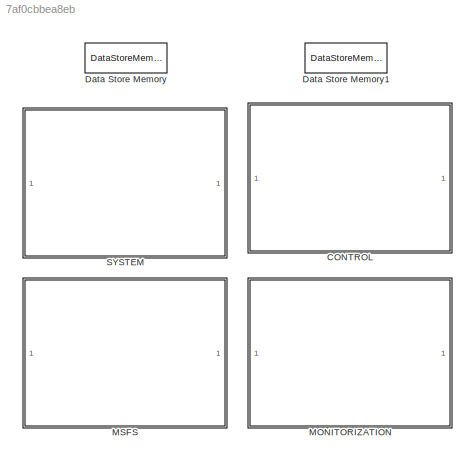
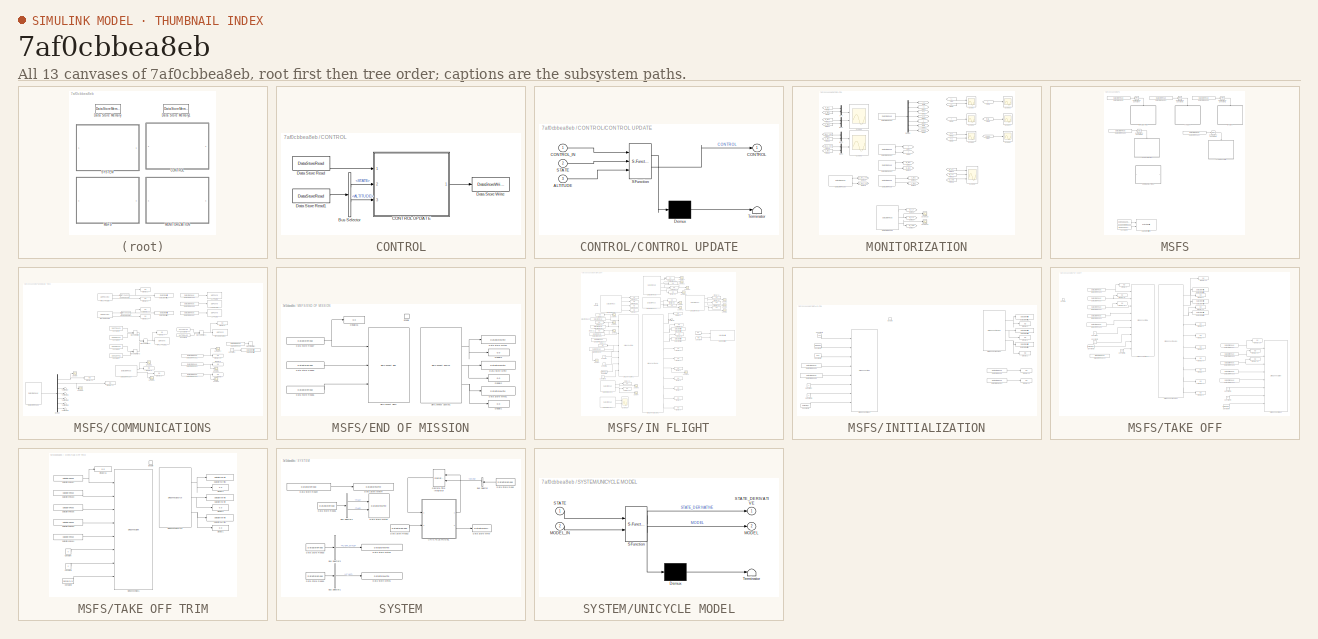
[diagram: thumbnail index - all 13 canvases of the model, root first then tree order]
MODEL slx_7af0cbbea8eb
KIND model
CONFIG AbsTol = auto
CONFIG EnableMultiTasking = off
CONFIG FixedStep = 0.03
CONFIG MaxStep = auto
CONFIG MinStep = auto
CONFIG RelTol = 1e-3
CONFIG SampleTimeConstraint = Unconstrained
CONFIG SolverName = FixedStepAuto
CONFIG StartTime = 0.0
CONFIG StopTime = 2000
BLOCK [SubSystem] CONTROL
  Ports = []
  RequestExecContextInheritance = off
BLOCK [BusSelector] CONTROL/Bus Selector
  OutputSignals = STATE,INPUT.ALTITUDE
  Ports = [1, 2]
BLOCK [SubSystem] CONTROL/CONTROL UPDATE
  ErrorFcn = Stateflow.Translate.translate
  PermitHierarchicalResolution = ExplicitOnly
  Ports = [3, 1]
  RequestExecContextInheritance = off
  SFBlockType = MATLAB Function
  TreatAsAtomicUnit = on
BLOCK [Demux] CONTROL/CONTROL UPDATE/ Demux 
  Outputs = 1
  Ports = [1, 1]
BLOCK [S-Function] CONTROL/CONTROL UPDATE/ SFunction 
  EnableBusSupport = on
  FunctionName = sf_sfun
  PortCounts = [3 2]
  Ports = [3, 2]
  SFcnIsStateOwnerBlock = off
  SFunctionDeploymentMode = off
  Tag = Stateflow S-Function 1
BLOCK [Terminator] CONTROL/CONTROL UPDATE/ Terminator 
BLOCK [Inport] CONTROL/CONTROL UPDATE/ALTITUDE
  Port = 3
BLOCK [Outport] CONTROL/CONTROL UPDATE/CONTROL
BLOCK [Inport] CONTROL/CONTROL UPDATE/CONTROL_IN
BLOCK [Inport] CONTROL/CONTROL UPDATE/STATE
  Port = 2
BLOCK [DataStoreRead] CONTROL/Data Store Read
  DataStoreName = CONTROL
  IndexOptions = Index vector (dialog)
  Indices = 1
  OutputSizes = 1
  Ports = [0, 1]
  SampleTime = MODEL_INI.PARAM.SIM_SAMPLING_TIME
BLOCK [DataStoreRead] CONTROL/Data Store Read1
  DataStoreName = MODEL
  IndexOptions = Index vector (dialog)
  Indices = 1
  OutputSizes = 1
  Ports = [0, 1]
  SampleTime = MODEL_INI.PARAM.SIM_SAMPLING_TIME
BLOCK [DataStoreWrite] CONTROL/Data Store Write
  DataStoreName = CONTROL
  IndexOptions = Index vector (dialog)
  Indices = 1
  OutputSizes = 1
  Ports = [1]
BLOCK [DataStoreMemory] Data Store Memory
  DataStoreName = MODEL
  InitialValue = MODEL_INI
  OutDataTypeStr = Bus: MODEL_Bus
  ReadBeforeWriteMsg = warning
  ShowAdditionalParam = off
  WriteAfterReadMsg = warning
  WriteAfterWriteMsg = warning
BLOCK [DataStoreMemory] Data Store Memory1
  DataStoreName = CONTROL
  InitialValue = CONTROL_INI
  OutDataTypeStr = Bus: CONTROL_Bus
  ReadBeforeWriteMsg = warning
  ShowAdditionalParam = off
  WriteAfterReadMsg = warning
  WriteAfterWriteMsg = warning
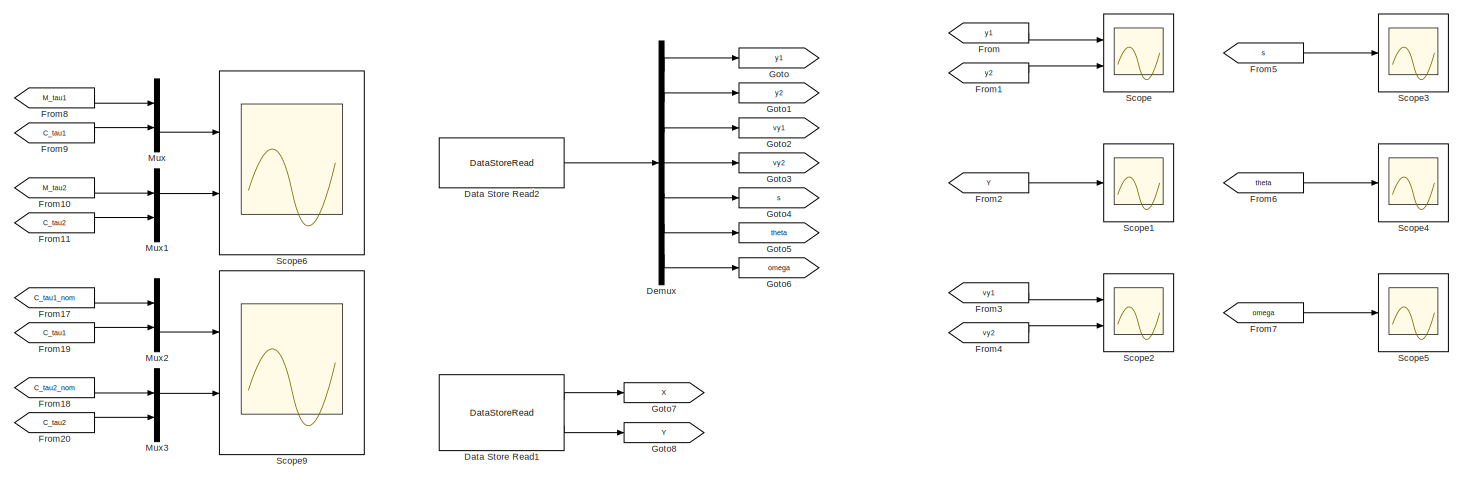
[diagram: MONITORIZATION - part 1/2, full width, top band]
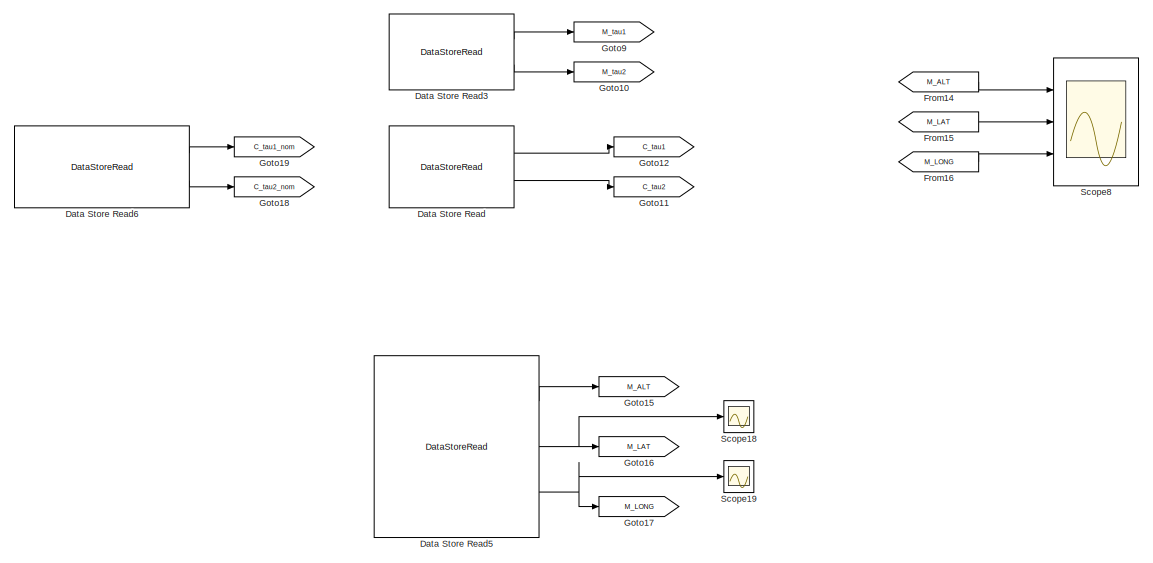
[diagram: MONITORIZATION - part 2/2, full width, bottom band]
BLOCK [SubSystem] MONITORIZATION
  Ports = []
  RequestExecContextInheritance = off
BLOCK [DataStoreRead] MONITORIZATION/Data Store Read
  DataStoreElements = CONTROL.OUTPUT.TAU1#CONTROL.OUTPUT.TAU2
  DataStoreName = CONTROL
  IndexOptions = Index vector (dialog)
  Indices = 1
  OutputSizes = 1
  Ports = [0, 2]
BLOCK [DataStoreRead] MONITORIZATION/Data Store Read1
  DataStoreElements = MODEL.OUTPUT.X#MODEL.OUTPUT.Y
  DataStoreName = MODEL
  IndexOptions = Index vector (dialog)
  Indices = 1
  OutputSizes = 1
  Ports = [0, 2]
  SampleTime = MODEL_INI.PARAM.SIM_SAMPLING_TIME
BLOCK [DataStoreRead] MONITORIZATION/Data Store Read2
  DataStoreElements = MODEL.STATE(:,:)
  DataStoreName = MODEL
  IndexOptions = Index vector (dialog)
  Indices = 1
  OutputSizes = 1
  Ports = [0, 1]
  SampleTime = MODEL_INI.PARAM.SIM_SAMPLING_TIME
BLOCK [DataStoreRead] MONITORIZATION/Data Store Read3
  DataStoreElements = MODEL.INPUT.TAU1#MODEL.INPUT.TAU2
  DataStoreName = MODEL
  IndexOptions = Index vector (dialog)
  Indices = 1
  OutputSizes = 1
  Ports = [0, 2]
  SampleTime = MODEL_INI.PARAM.SIM_SAMPLING_TIME
BLOCK [DataStoreRead] MONITORIZATION/Data Store Read5
  DataStoreElements = MODEL.INPUT.ALTITUDE#MODEL.INPUT.LATITUDE#MODEL.INPUT.LONGITUDE
  DataStoreName = MODEL
  IndexOptions = Index vector (dialog)
  Indices = 1
  OutputSizes = 1
  Ports = [0, 3]
  SampleTime = MODEL_INI.PARAM.SIM_SAMPLING_TIME
BLOCK [DataStoreRead] MONITORIZATION/Data Store Read6
  DataStoreElements = CONTROL.OUTPUT.TAU1_NOM#CONTROL.OUTPUT.TAU2_NOM
  DataStoreName = CONTROL
  IndexOptions = Index vector (dialog)
  Indices = 1
  OutputSizes = 1
  Ports = [0, 2]
BLOCK [Demux] MONITORIZATION/Demux
  Outputs = 7
  Ports = [1, 7]
BLOCK [From] MONITORIZATION/From
  GotoTag = y1
BLOCK [From] MONITORIZATION/From1
  GotoTag = y2
BLOCK [From] MONITORIZATION/From10
  GotoTag = M_tau2
BLOCK [From] MONITORIZATION/From11
  GotoTag = C_tau2
BLOCK [From] MONITORIZATION/From14
  GotoTag = M_ALT
BLOCK [From] MONITORIZATION/From15
  GotoTag = M_LAT
BLOCK [From] MONITORIZATION/From16
  GotoTag = M_LONG
BLOCK [From] MONITORIZATION/From17
  GotoTag = C_tau1_nom
BLOCK [From] MONITORIZATION/From18
  GotoTag = C_tau2_nom
BLOCK [From] MONITORIZATION/From19
  GotoTag = C_tau1
BLOCK [From] MONITORIZATION/From2
  GotoTag = Y
BLOCK [From] MONITORIZATION/From20
  GotoTag = C_tau2
BLOCK [From] MONITORIZATION/From3
  GotoTag = vy1
BLOCK [From] MONITORIZATION/From4
  GotoTag = vy2
BLOCK [From] MONITORIZATION/From5
  GotoTag = s
BLOCK [From] MONITORIZATION/From6
  GotoTag = theta
BLOCK [From] MONITORIZATION/From7
  GotoTag = omega
BLOCK [From] MONITORIZATION/From8
  GotoTag = M_tau1
BLOCK [From] MONITORIZATION/From9
  GotoTag = C_tau1
BLOCK [Goto] MONITORIZATION/Goto
  GotoTag = y1
BLOCK [Goto] MONITORIZATION/Goto1
  GotoTag = y2
BLOCK [Goto] MONITORIZATION/Goto10
  GotoTag = M_tau2
BLOCK [Goto] MONITORIZATION/Goto11
  GotoTag = C_tau2
BLOCK [Goto] MONITORIZATION/Goto12
  GotoTag = C_tau1
BLOCK [Goto] MONITORIZATION/Goto15
  GotoTag = M_ALT
BLOCK [Goto] MONITORIZATION/Goto16
  GotoTag = M_LAT
BLOCK [Goto] MONITORIZATION/Goto17
  GotoTag = M_LONG
BLOCK [Goto] MONITORIZATION/Goto18
  GotoTag = C_tau2_nom
BLOCK [Goto] MONITORIZATION/Goto19
  GotoTag = C_tau1_nom
BLOCK [Goto] MONITORIZATION/Goto2
  GotoTag = vy1
BLOCK [Goto] MONITORIZATION/Goto3
  GotoTag = vy2
BLOCK [Goto] MONITORIZATION/Goto4
  GotoTag = s
BLOCK [Goto] MONITORIZATION/Goto5
  GotoTag = theta
BLOCK [Goto] MONITORIZATION/Goto6
  GotoTag = omega
BLOCK [Goto] MONITORIZATION/Goto7
  GotoTag = X
BLOCK [Goto] MONITORIZATION/Goto8
  GotoTag = Y
BLOCK [Goto] MONITORIZATION/Goto9
  GotoTag = M_tau1
BLOCK [Mux] MONITORIZATION/Mux
  DisplayOption = bar
  Inputs = 2
  Ports = [2, 1]
BLOCK [Mux] MONITORIZATION/Mux1
  DisplayOption = bar
  Inputs = 2
  Ports = [2, 1]
BLOCK [Mux] MONITORIZATION/Mux2
  DisplayOption = bar
  Inputs = 2
  Ports = [2, 1]
BLOCK [Mux] MONITORIZATION/Mux3
  DisplayOption = bar
  Inputs = 2
  Ports = [2, 1]
BLOCK [Scope] MONITORIZATION/Scope
  Floating = off
  NumInputPorts = 2
  Ports = [2]
  ScopeSpecificationString = Simulink.scopes.TimeScopeBlockCfg('CurrentConfiguration', extmgr.ConfigurationSet(extmgr.Configuration('Core','General UI',true),extmgr.Configuration('Core','Source UI',true),extmgr.Configuration('Sources','WiredSimulink',true,'DataLoggingVariableName','DISP_COORDINATES','DataLogging',true,'DataLoggingSaveFormat','Structure'),extmgr.Configuration('Visuals','Time Domain',true,'SerializedDisplays',{...<+2124ch>
BLOCK [Scope] MONITORIZATION/Scope1
  Floating = off
  NumInputPorts = 1
  Ports = [1]
  ScopeSpecificationString = Simulink.scopes.TimeScopeBlockCfg('CurrentConfiguration', extmgr.ConfigurationSet(extmgr.Configuration('Core','General UI',true),extmgr.Configuration('Core','Source UI',true),extmgr.Configuration('Sources','WiredSimulink',true,'DataLoggingVariableName','DISP_OUTPUT','DataLogging',true,'DataLoggingSaveFormat','Structure'),extmgr.Configuration('Visuals','Time Domain',true,'SerializedDisplays',{struc...<+1606ch>
BLOCK [Scope] MONITORIZATION/Scope18
  Floating = off
  NumInputPorts = 1
  Ports = [1]
  ScopeSpecificationString = Simulink.scopes.TimeScopeBlockCfg('CurrentConfiguration', extmgr.ConfigurationSet(extmgr.Configuration('Core','General UI',true),extmgr.Configuration('Core','Source UI',true),extmgr.Configuration('Sources','WiredSimulink',true,'DataLoggingVariableName','LAT_DATA','DataLogging',true,'DataLoggingSaveFormat','Structure'),extmgr.Configuration('Visuals','Time Domain',true,'SerializedDisplays',{struct('...<+1497ch>
BLOCK [Scope] MONITORIZATION/Scope19
  Floating = off
  NumInputPorts = 1
  Ports = [1]
  ScopeSpecificationString = Simulink.scopes.TimeScopeBlockCfg('CurrentConfiguration', extmgr.ConfigurationSet(extmgr.Configuration('Core','General UI',true),extmgr.Configuration('Core','Source UI',true),extmgr.Configuration('Sources','WiredSimulink',true,'DataLoggingVariableName','LONG_DATA','DataLogging',true,'DataLoggingSaveFormat','Structure'),extmgr.Configuration('Visuals','Time Domain',true,'SerializedDisplays',{struct(...<+1507ch>
BLOCK [Scope] MONITORIZATION/Scope2
  Floating = off
  NumInputPorts = 2
  Ports = [2]
  ScopeSpecificationString = Simulink.scopes.TimeScopeBlockCfg('CurrentConfiguration', extmgr.ConfigurationSet(extmgr.Configuration('Core','General UI',true),extmgr.Configuration('Core','Source UI',true),extmgr.Configuration('Sources','WiredSimulink',true,'DataLoggingVariableName','ScopeData1','DataLoggingSaveFormat','Structure'),extmgr.Configuration('Visuals','Time Domain',true,'SerializedDisplays',{struct('MinYLimReal','-89...<+2063ch>
BLOCK [Scope] MONITORIZATION/Scope3
  Floating = off
  NumInputPorts = 1
  Ports = [1]
  ScopeSpecificationString = Simulink.scopes.TimeScopeBlockCfg('CurrentConfiguration', extmgr.ConfigurationSet(extmgr.Configuration('Core','General UI',true),extmgr.Configuration('Core','Source UI',true),extmgr.Configuration('Sources','WiredSimulink',true,'DataLoggingVariableName','ScopeData2','DataLoggingSaveFormat','Structure'),extmgr.Configuration('Visuals','Time Domain',true,'SerializedDisplays',{struct('MinYLimReal','-10...<+2857ch>
BLOCK [Scope] MONITORIZATION/Scope4
  Floating = off
  NumInputPorts = 1
  Ports = [1]
  ScopeSpecificationString = Simulink.scopes.TimeScopeBlockCfg('CurrentConfiguration', extmgr.ConfigurationSet(extmgr.Configuration('Core','General UI',true),extmgr.Configuration('Core','Source UI',true),extmgr.Configuration('Sources','WiredSimulink',true,'DataLoggingVariableName','ScopeData3','DataLoggingSaveFormat','Structure'),extmgr.Configuration('Visuals','Time Domain',true,'SerializedDisplays',{struct('MinYLimReal','-57...<+2841ch>
BLOCK [Scope] MONITORIZATION/Scope5
  Floating = off
  NumInputPorts = 1
  Ports = [1]
  ScopeSpecificationString = Simulink.scopes.TimeScopeBlockCfg('CurrentConfiguration', extmgr.ConfigurationSet(extmgr.Configuration('Core','General UI',true),extmgr.Configuration('Core','Source UI',true),extmgr.Configuration('Sources','WiredSimulink',true,'DataLoggingVariableName','ScopeData4','DataLoggingSaveFormat','Structure'),extmgr.Configuration('Visuals','Time Domain',true,'SerializedDisplays',{struct('MinYLimReal','-18...<+2855ch>
BLOCK [Scope] MONITORIZATION/Scope6
  Floating = off
  NumInputPorts = 2
  Ports = [2]
  ScopeSpecificationString = Simulink.scopes.TimeScopeBlockCfg('CurrentConfiguration', extmgr.ConfigurationSet(extmgr.Configuration('Core','General UI',true),extmgr.Configuration('Core','Source UI',true),extmgr.Configuration('Sources','WiredSimulink',true,'DataLoggingVariableName','INPUT','DataLogging',true,'DataLoggingSaveFormat','Structure'),extmgr.Configuration('Visuals','Time Domain',true,'SerializedDisplays',{struct('Min...<+2148ch>
BLOCK [Scope] MONITORIZATION/Scope8
  Floating = off
  NumInputPorts = 3
  Ports = [3]
  ScopeSpecificationString = Simulink.scopes.TimeScopeBlockCfg('CurrentConfiguration', extmgr.ConfigurationSet(extmgr.Configuration('Core','General UI',true),extmgr.Configuration('Core','Source UI',true),extmgr.Configuration('Sources','WiredSimulink',true,'DataLoggingVariableName','ScopeData2','DataLoggingSaveFormat','Structure'),extmgr.Configuration('Visuals','Time Domain',true,'SerializedDisplays',{struct('MinYLimReal','-18...<+2788ch>
BLOCK [Scope] MONITORIZATION/Scope9
  Floating = off
  NumInputPorts = 2
  Ports = [2]
  ScopeSpecificationString = Simulink.scopes.TimeScopeBlockCfg('CurrentConfiguration', extmgr.ConfigurationSet(extmgr.Configuration('Core','General UI',true),extmgr.Configuration('Core','Source UI',true),extmgr.Configuration('Sources','WiredSimulink',true,'DataLoggingVariableName','ScopeData1','DataLogging',true,'DataLoggingSaveFormat','Structure'),extmgr.Configuration('Visuals','Time Domain',true,'SerializedDisplays',{struct...<+2070ch>
BLOCK [SubSystem] MSFS
  Ports = []
  RequestExecContextInheritance = off
BLOCK [SubSystem] MSFS/COMMUNICATIONS
  Ports = []
  RequestExecContextInheritance = off
BLOCK [Reference] MSFS/COMMUNICATIONS/ALTITUDE  REF=instrumentlib/UDP Send
  Commented = on
  Ports = [1]
  SourceBlock = instrumentlib/UDP Send
  SourceProductBaseCode = IC
  SourceType = UDP Send
BLOCK [DataTypeConversion] MSFS/COMMUNICATIONS/Cast To Double
  OutDataTypeStr = double
  RndMeth = Floor
  SaturateOnIntegerOverflow = off
BLOCK [DataTypeConversion] MSFS/COMMUNICATIONS/Cast To Double1
  OutDataTypeStr = double
  RndMeth = Floor
  SaturateOnIntegerOverflow = off
BLOCK [Constant] MSFS/COMMUNICATIONS/Constant
  SampleTime = -1
  Value = 0
BLOCK [Constant] MSFS/COMMUNICATIONS/Constant1
  Commented = on
  SampleTime = 0.03
  Value = 3.2655e+01
BLOCK [Constant] MSFS/COMMUNICATIONS/Constant2
  Commented = on
  SampleTime = 0.03
  Value = 3.2672e+01
BLOCK [Constant] MSFS/COMMUNICATIONS/Constant3
  Commented = on
  SampleTime = 0.03
  Value = -1.1725e+02
BLOCK [Constant] MSFS/COMMUNICATIONS/Constant4
  Commented = on
  SampleTime = 0.03
  Value = 3.2638e+01
BLOCK [Constant] MSFS/COMMUNICATIONS/Constant5
  Commented = on
  SampleTime = 0.03
  Value = -1.1719e+02
BLOCK [Constant] MSFS/COMMUNICATIONS/Constant7
  Commented = on
  SampleTime = 0.03
  Value = 3.2622e+01
BLOCK [DataStoreRead] MSFS/COMMUNICATIONS/Data Store Read
  DataStoreElements = CONTROL.TARGET.SIMU_END
  DataStoreName = CONTROL
  IndexOptions = Index vector (dialog)
  Indices = 1
  OutputSizes = 1
  Ports = [0, 1]
BLOCK [DataStoreRead] MSFS/COMMUNICATIONS/Data Store Read1
  DataStoreElements = CONTROL.OUTPUT.AT_WP
  DataStoreName = CONTROL
  IndexOptions = Index vector (dialog)
  Indices = 1
  OutputSizes = 1
  Ports = [0, 1]
BLOCK [DataStoreRead] MSFS/COMMUNICATIONS/Data Store Read2
  DataStoreElements = CONTROL.PARAM.FLIGHT_STATUS
  DataStoreName = CONTROL
  IndexOptions = Index vector (dialog)
  Indices = 1
  OutputSizes = 1
  Ports = [0, 1]
BLOCK [DataStoreRead] MSFS/COMMUNICATIONS/Data Store Read3
  DataStoreElements = CONTROL.OUTPUT.ALMOST_WP
  DataStoreName = CONTROL
  IndexOptions = Index vector (dialog)
  Indices = 1
  OutputSizes = 1
  Ports = [0, 1]
BLOCK [DataStoreRead] MSFS/COMMUNICATIONS/Data Store Read4
  DataStoreElements = CONTROL.PARAM.PREV_WP1#CONTROL.PARAM.PREV_WP2
  DataStoreName = CONTROL
  IndexOptions = Index vector (dialog)
  Indices = 1
  OutputSizes = 1
  Ports = [0, 2]
BLOCK [DataStoreRead] MSFS/COMMUNICATIONS/Data Store Read5
  Commented = on
  DataStoreElements = MODEL.OUTPUT.LATITUDE
  DataStoreName = MODEL
  IndexOptions = Index vector (dialog)
  Indices = 1
  OutputSizes = 1
  Ports = [0, 1]
BLOCK [DataStoreRead] MSFS/COMMUNICATIONS/Data Store Read6
  Commented = on
  DataStoreElements = MODEL.OUTPUT.LONGITUDE
  DataStoreName = MODEL
  IndexOptions = Index vector (dialog)
  Indices = 1
  OutputSizes = 1
  Ports = [0, 1]
BLOCK [DataStoreRead] MSFS/COMMUNICATIONS/Data Store Read7
  Commented = on
  DataStoreElements = MODEL.OUTPUT.ALTITUDE
  DataStoreName = MODEL
  IndexOptions = Index vector (dialog)
  Indices = 1
  OutputSizes = 1
  Ports = [0, 1]
BLOCK [DataStoreRead] MSFS/COMMUNICATIONS/Data Store Read8
  DataStoreElements = MODEL.STATE(:,:)
  DataStoreName = MODEL
  IndexOptions = Index vector (dialog)
  Indices = 1
  OutputSizes = 1
  Ports = [0, 1]
  SampleTime = MODEL_INI.PARAM.SIM_SAMPLING_TIME
BLOCK [DataStoreWrite] MSFS/COMMUNICATIONS/Data Store Write
  DataStoreElements = CONTROL.TARGET.SIMU_END
  DataStoreName = CONTROL
  IndexOptions = Index vector (dialog)
  Indices = 1
  OutputSizes = 1
  Ports = [1]
BLOCK [DataStoreWrite] MSFS/COMMUNICATIONS/Data Store Write1
  DataStoreElements = CONTROL.TARGET.LATITUDE
  DataStoreName = CONTROL
  IndexOptions = Index vector (dialog)
  Indices = 1
  OutputSizes = 1
  Ports = [1]
BLOCK [DataStoreWrite] MSFS/COMMUNICATIONS/Data Store Write2
  DataStoreElements = CONTROL.TARGET.LONGITUDE
  DataStoreName = CONTROL
  IndexOptions = Index vector (dialog)
  Indices = 1
  OutputSizes = 1
  Ports = [1]
BLOCK [Demux] MSFS/COMMUNICATIONS/Demux
  Outputs = 7
  Ports = [1, 7]
BLOCK [Display] MSFS/COMMUNICATIONS/Display
  Decimation = 1
  Ports = [1]
BLOCK [Display] MSFS/COMMUNICATIONS/Display1
  Decimation = 1
  Ports = [1]
BLOCK [Display] MSFS/COMMUNICATIONS/Display10
  Decimation = 1
  Ports = [1]
BLOCK [Display] MSFS/COMMUNICATIONS/Display11
  Decimation = 1
  Ports = [1]
BLOCK [Display] MSFS/COMMUNICATIONS/Display2
  Decimation = 1
  Ports = [1]
BLOCK [Display] MSFS/COMMUNICATIONS/Display29
  Decimation = 1
  Ports = [1]
BLOCK [Display] MSFS/COMMUNICATIONS/Display3
  Decimation = 1
  Ports = [1]
BLOCK [Display] MSFS/COMMUNICATIONS/Display4
  Commented = on
  Decimation = 1
  Ports = [1]
BLOCK [Display] MSFS/COMMUNICATIONS/Display5
  Commented = on
  Decimation = 1
  Ports = [1]
BLOCK [Display] MSFS/COMMUNICATIONS/Display6
  Decimation = 1
  Ports = [1]
BLOCK [Display] MSFS/COMMUNICATIONS/Display7
  Decimation = 1
  Ports = [1]
BLOCK [Display] MSFS/COMMUNICATIONS/Display8
  Decimation = 1
  Ports = [1]
BLOCK [Display] MSFS/COMMUNICATIONS/Display9
  Decimation = 1
  Ports = [1]
BLOCK [Reference] MSFS/COMMUNICATIONS/LATITUDE  REF=instrumentlib/UDP Send
  Commented = on
  Ports = [1]
  SourceBlock = instrumentlib/UDP Send
  SourceProductBaseCode = IC
  SourceType = UDP Send
BLOCK [Reference] MSFS/COMMUNICATIONS/LONGITUDE  REF=instrumentlib/UDP Send
  Commented = on
  Ports = [1]
  SourceBlock = instrumentlib/UDP Send
  SourceProductBaseCode = IC
  SourceType = UDP Send
BLOCK [ManualSwitch] MSFS/COMMUNICATIONS/Manual Switch
  Commented = on
  CurrentSetting = 0
BLOCK [ManualSwitch] MSFS/COMMUNICATIONS/Manual Switch1
  Commented = on
BLOCK [ManualSwitch] MSFS/COMMUNICATIONS/Manual Switch2
  Commented = on
BLOCK [ManualSwitch] MSFS/COMMUNICATIONS/Manual Switch3
  Commented = on
  CurrentSetting = 0
BLOCK [Scope] MSFS/COMMUNICATIONS/Scope
  Floating = off
  NumInputPorts = 1
  Ports = [1]
  ScopeSpecificationString = Simulink.scopes.TimeScopeBlockCfg('CurrentConfiguration', extmgr.ConfigurationSet(extmgr.Configuration('Core','General UI',true),extmgr.Configuration('Core','Source UI',true),extmgr.Configuration('Sources','WiredSimulink',true,'DataLoggingVariableName','ScopeData1'),extmgr.Configuration('Visuals','Time Domain',true,'SerializedDisplays',{struct('MinYLimReal','-8044180.8830328','MaxYLimReal','-80441...<+1449ch>
BLOCK [Scope] MSFS/COMMUNICATIONS/Scope1
  Floating = off
  NumInputPorts = 1
  Ports = [1]
  ScopeSpecificationString = Simulink.scopes.TimeScopeBlockCfg('CurrentConfiguration', extmgr.ConfigurationSet(extmgr.Configuration('Core','General UI',true),extmgr.Configuration('Core','Source UI',true),extmgr.Configuration('Sources','WiredSimulink',true,'DataLoggingVariableName','ScopeData1'),extmgr.Configuration('Visuals','Time Domain',true,'SerializedDisplays',{struct('MinYLimReal','-0.00199','MaxYLimReal','0.00407','YLab...<+1448ch>
BLOCK [Scope] MSFS/COMMUNICATIONS/Scope17
  Floating = off
  NumInputPorts = 1
  Ports = [1]
  ScopeSpecificationString = Simulink.scopes.TimeScopeBlockCfg('CurrentConfiguration', extmgr.ConfigurationSet(extmgr.Configuration('Core','General UI',true),extmgr.Configuration('Core','Source UI',true),extmgr.Configuration('Sources','WiredSimulink',true,'DataLoggingVariableName','ScopeData2'),extmgr.Configuration('Visuals','Time Domain',true,'SerializedDisplays',{struct('MinYLimReal','-0.125','MaxYLimReal','1.125','YLabelRe...<+1409ch>
BLOCK [Scope] MSFS/COMMUNICATIONS/Scope2
  Floating = off
  NumInputPorts = 1
  Ports = [1]
  ScopeSpecificationString = Simulink.scopes.TimeScopeBlockCfg('CurrentConfiguration', extmgr.ConfigurationSet(extmgr.Configuration('Core','General UI',true),extmgr.Configuration('Core','Source UI',true),extmgr.Configuration('Sources','WiredSimulink',true,'DataLoggingVariableName','ScopeData3'),extmgr.Configuration('Visuals','Time Domain',true,'SerializedDisplays',{struct('MinYLimReal','-0.04753','MaxYLimReal','0.06212','YLab...<+1448ch>
BLOCK [Scope] MSFS/COMMUNICATIONS/Scope3
  Floating = off
  NumInputPorts = 1
  Ports = [1]
  ScopeSpecificationString = Simulink.scopes.TimeScopeBlockCfg('CurrentConfiguration', extmgr.ConfigurationSet(extmgr.Configuration('Core','General UI',true),extmgr.Configuration('Core','Source UI',true),extmgr.Configuration('Sources','WiredSimulink',true,'DataLoggingVariableName','ScopeData2'),extmgr.Configuration('Visuals','Time Domain',true,'SerializedDisplays',{struct('MinYLimReal','-8044877.216571','MaxYLimReal','-804487...<+1506ch>
BLOCK [Scope] MSFS/COMMUNICATIONS/Scope4
  Floating = off
  NumInputPorts = 1
  Ports = [1]
  ScopeSpecificationString = Simulink.scopes.TimeScopeBlockCfg('CurrentConfiguration', extmgr.ConfigurationSet(extmgr.Configuration('Core','General UI',true),extmgr.Configuration('Core','Source UI',true),extmgr.Configuration('Sources','WiredSimulink',true,'DataLoggingVariableName','ScopeData1'),extmgr.Configuration('Visuals','Time Domain',true,'SerializedDisplays',{struct('MinYLimReal','-17611407.75726','MaxYLimReal','1956823...<+1473ch>
BLOCK [Scope] MSFS/COMMUNICATIONS/Scope5
  Floating = off
  NumInputPorts = 1
  Ports = [1]
  ScopeSpecificationString = Simulink.scopes.TimeScopeBlockCfg('CurrentConfiguration', extmgr.ConfigurationSet(extmgr.Configuration('Core','General UI',true),extmgr.Configuration('Core','Source UI',true),extmgr.Configuration('Sources','WiredSimulink',true,'DataLoggingVariableName','ScopeData2'),extmgr.Configuration('Visuals','Time Domain',true,'SerializedDisplays',{struct('MinYLimReal','-15659484.13897','MaxYLimReal','-156592...<+1466ch>
BLOCK [Stop] MSFS/COMMUNICATIONS/Stop Simulation
BLOCK [Terminator] MSFS/COMMUNICATIONS/Terminator
BLOCK [Terminator] MSFS/COMMUNICATIONS/Terminator1
BLOCK [Terminator] MSFS/COMMUNICATIONS/Terminator2
BLOCK [Terminator] MSFS/COMMUNICATIONS/Terminator3
BLOCK [Terminator] MSFS/COMMUNICATIONS/Terminator4
BLOCK [Reference] MSFS/COMMUNICATIONS/WP LATITUDE  REF=instrumentlib/UDP Receive
  Ports = [0, 2]
  SourceBlock = instrumentlib/UDP Receive
  SourceProductBaseCode = IC
  SourceType = UDP Receive
BLOCK [Reference] MSFS/COMMUNICATIONS/WP LATITUDE1  REF=instrumentlib/UDP Send
  Commented = on
  Ports = [1]
  SourceBlock = instrumentlib/UDP Send
  SourceProductBaseCode = IC
  SourceType = UDP Send
BLOCK [Reference] MSFS/COMMUNICATIONS/WP LONGITUDE  REF=instrumentlib/UDP Receive
  Ports = [0, 2]
  SourceBlock = instrumentlib/UDP Receive
  SourceProductBaseCode = IC
  SourceType = UDP Receive
BLOCK [Reference] MSFS/COMMUNICATIONS/WP LONGITUDE1  REF=instrumentlib/UDP Send
  Commented = on
  Ports = [1]
  SourceBlock = instrumentlib/UDP Send
  SourceProductBaseCode = IC
  SourceType = UDP Send
BLOCK [Reference] MSFS/Compare To Constant  REF=simulink/Logic and Bit
Operations/Compare
To Constant
  Commented = on
  Ports = [1, 1]
  SourceBlock = simulink/Logic and Bit\nOperations/Compare\nTo Constant
  SourceProductBaseCode = SL
  SourceType = Compare To Constant
BLOCK [Reference] MSFS/Compare To Constant1  REF=simulink/Logic and Bit
Operations/Compare
To Constant
  Ports = [1, 1]
  SourceBlock = simulink/Logic and Bit\nOperations/Compare\nTo Constant
  SourceProductBaseCode = SL
  SourceType = Compare To Constant
BLOCK [Reference] MSFS/Compare To Constant2  REF=simulink/Logic and Bit
Operations/Compare
To Constant
  Commented = on
  Ports = [1, 1]
  SourceBlock = simulink/Logic and Bit\nOperations/Compare\nTo Constant
  SourceProductBaseCode = SL
  SourceType = Compare To Constant
BLOCK [Reference] MSFS/Compare To Constant3  REF=simulink/Logic and Bit
Operations/Compare
To Constant
  Commented = on
  Ports = [1, 1]
  SourceBlock = simulink/Logic and Bit\nOperations/Compare\nTo Constant
  SourceProductBaseCode = SL
  SourceType = Compare To Constant
BLOCK [Reference] MSFS/Compare To Constant4  REF=simulink/Logic and Bit
Operations/Compare
To Constant
  Commented = on
  Ports = [1, 1]
  SourceBlock = simulink/Logic and Bit\nOperations/Compare\nTo Constant
  SourceProductBaseCode = SL
  SourceType = Compare To Constant
BLOCK [Constant] MSFS/Constant3
  SampleTime = -1
  Value = 33.906866054481476
BLOCK [Constant] MSFS/Constant4
  SampleTime = -1
  Value = -84.35439102319383
BLOCK [DataStoreRead] MSFS/Data Store Read
  Commented = on
  DataStoreElements = CONTROL.PARAM.FLIGHT_STATUS
  DataStoreName = CONTROL
  IndexOptions = Index vector (dialog)
  Indices = 1
  OutputSizes = 1
  Ports = [0, 1]
BLOCK [DataStoreRead] MSFS/Data Store Read1
  DataStoreElements = CONTROL.PARAM.FLIGHT_STATUS
  DataStoreName = CONTROL
  IndexOptions = Index vector (dialog)
  Indices = 1
  OutputSizes = 1
  Ports = [0, 1]
BLOCK [DataStoreRead] MSFS/Data Store Read2
  Commented = on
  DataStoreElements = CONTROL.PARAM.FLIGHT_STATUS
  DataStoreName = CONTROL
  IndexOptions = Index vector (dialog)
  Indices = 1
  OutputSizes = 1
  Ports = [0, 1]
BLOCK [DataStoreRead] MSFS/Data Store Read3
  Commented = on
  DataStoreElements = CONTROL.PARAM.FLIGHT_STATUS
  DataStoreName = CONTROL
  IndexOptions = Index vector (dialog)
  Indices = 1
  OutputSizes = 1
  Ports = [0, 1]
BLOCK [DataStoreRead] MSFS/Data Store Read4
  Commented = on
  DataStoreElements = CONTROL.PARAM.FLIGHT_STATUS
  DataStoreName = CONTROL
  IndexOptions = Index vector (dialog)
  Indices = 1
  OutputSizes = 1
  Ports = [0, 1]
BLOCK [DataStoreWrite] MSFS/Data Store Write3
  DataStoreElements = CONTROL.TARGET.LATITUDE#CONTROL.TARGET.LONGITUDE
  DataStoreName = CONTROL
  IndexOptions = Index vector (dialog)
  Indices = 1
  OutputSizes = 1
  Ports = [2]
BLOCK [SubSystem] MSFS/END OF MISSION
  Commented = on
  Ports = [0, 0, 1]
  RequestExecContextInheritance = off
BLOCK [DataStoreRead] MSFS/END OF MISSION/Data Store Read3
  DataStoreElements = MODEL.OUTPUT.LATITUDE
  DataStoreName = MODEL
  IndexOptions = Index vector (dialog)
  Indices = 1
  OutputSizes = 1
  Ports = [0, 1]
BLOCK [DataStoreRead] MSFS/END OF MISSION/Data Store Read6
  DataStoreElements = MODEL.OUTPUT.LONGITUDE
  DataStoreName = MODEL
  IndexOptions = Index vector (dialog)
  Indices = 1
  OutputSizes = 1
  Ports = [0, 1]
BLOCK [DataStoreRead] MSFS/END OF MISSION/Data Store Read7
  DataStoreElements = MODEL.OUTPUT.ALTITUDE
  DataStoreName = MODEL
  IndexOptions = Index vector (dialog)
  Indices = 1
  OutputSizes = 1
  Ports = [0, 1]
BLOCK [DataStoreWrite] MSFS/END OF MISSION/Data Store Write
  DataStoreElements = MODEL.INPUT.LATITUDE
  DataStoreName = MODEL
  IndexOptions = Index vector (dialog)
  Indices = 1
  OutputSizes = 1
  Ports = [1]
BLOCK [DataStoreWrite] MSFS/END OF MISSION/Data Store Write1
  DataStoreElements = MODEL.INPUT.LONGITUDE
  DataStoreName = MODEL
  IndexOptions = Index vector (dialog)
  Indices = 1
  OutputSizes = 1
  Ports = [1]
BLOCK [DataStoreWrite] MSFS/END OF MISSION/Data Store Write2
  DataStoreElements = MODEL.INPUT.ALTITUDE
  DataStoreName = MODEL
  IndexOptions = Index vector (dialog)
  Indices = 1
  OutputSizes = 1
  Ports = [1]
BLOCK [Display] MSFS/END OF MISSION/Display1
  Decimation = 1
  Ports = [1]
BLOCK [Display] MSFS/END OF MISSION/Display16
  Decimation = 1
  Ports = [1]
BLOCK [Display] MSFS/END OF MISSION/Display2
  Decimation = 1
  Ports = [1]
BLOCK [Display] MSFS/END OF MISSION/Display3
  Decimation = 1
  Ports = [1]
BLOCK [EnablePort] MSFS/END OF MISSION/Enable
  Ports = []
BLOCK [Reference] MSFS/END OF MISSION/SimConnect Sink2  REF=SimConnectToolbox/SimConnect Sink
  Ports = [3]
  SourceBlock = SimConnectToolbox/SimConnect Sink
  SourceProductName = SimConnect Toolbox
BLOCK [Reference] MSFS/END OF MISSION/SimConnect Source1  REF=SimConnectToolbox/SimConnect Source
  Ports = [0, 3]
  SourceBlock = SimConnectToolbox/SimConnect Source
  SourceProductName = SimConnect Toolbox
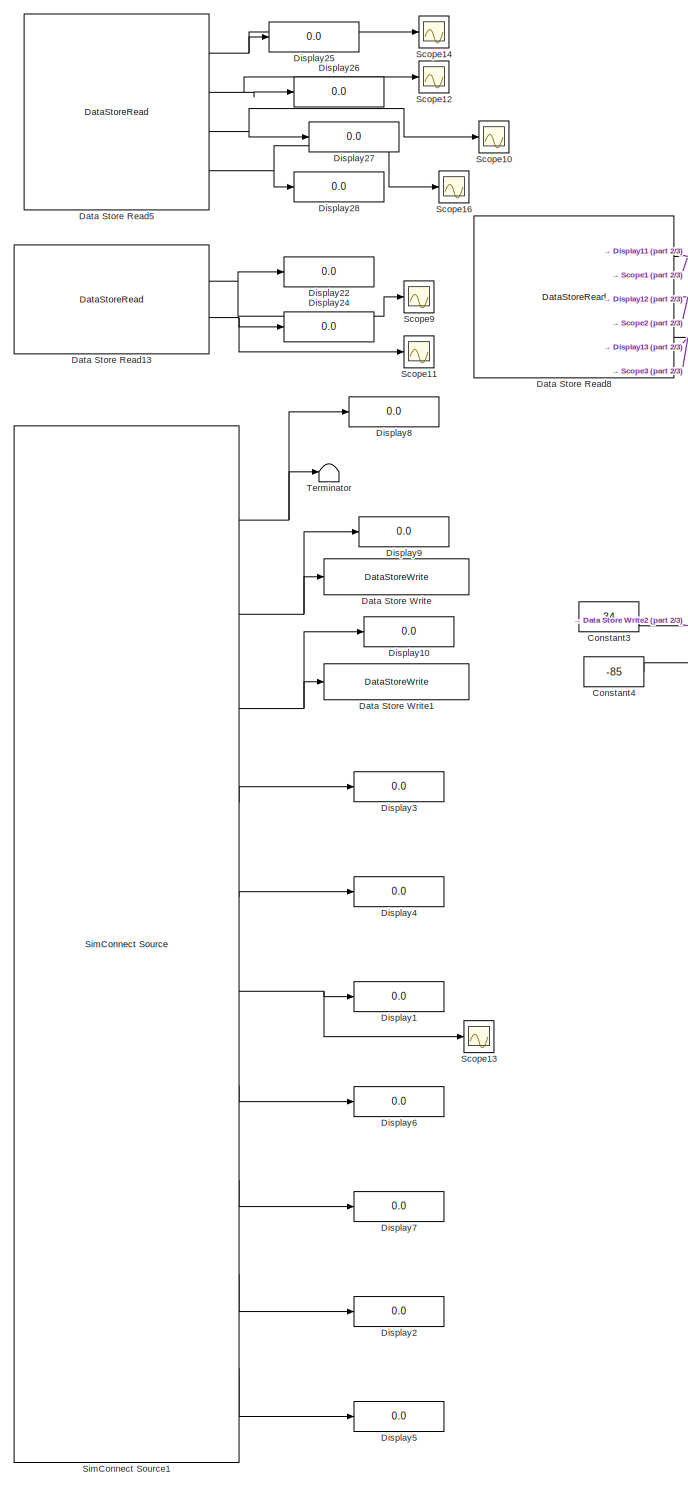
[diagram: MSFS/IN FLIGHT - part 1/3, center side, full height]
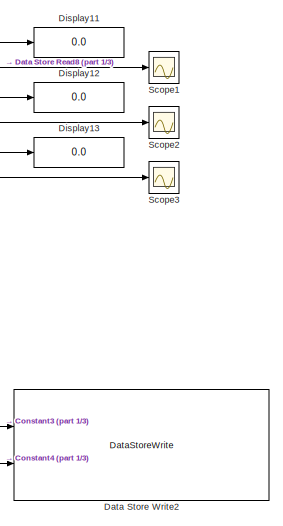
[diagram: MSFS/IN FLIGHT - part 2/3, top right region]
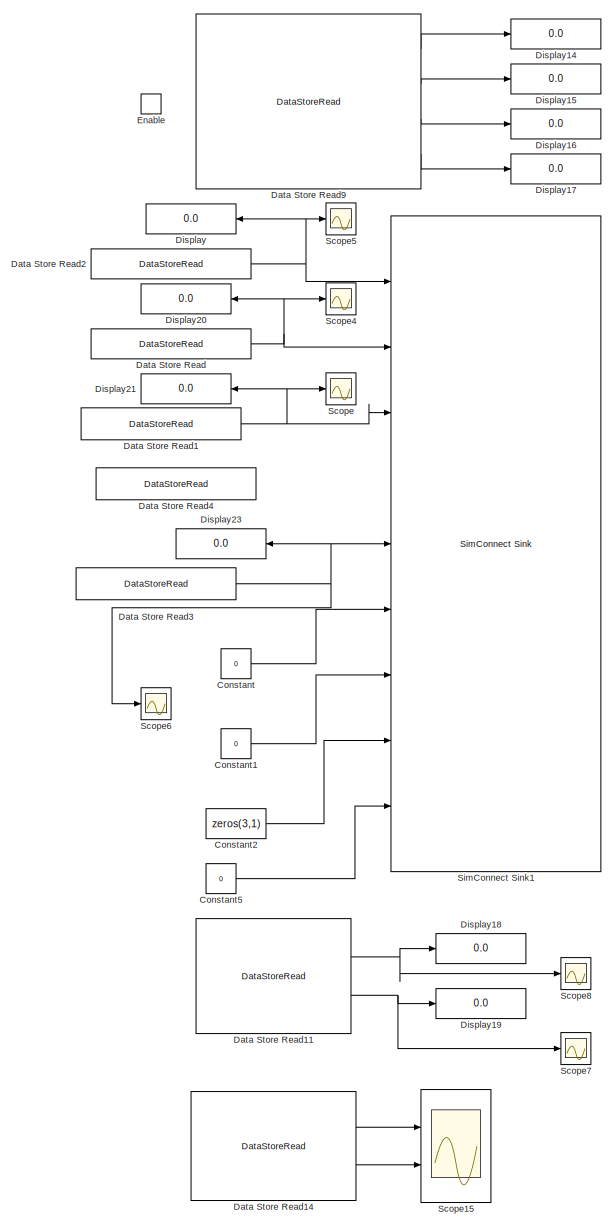
[diagram: MSFS/IN FLIGHT - part 3/3, left side, full height]
BLOCK [SubSystem] MSFS/IN FLIGHT
  Ports = [0, 0, 1]
  RequestExecContextInheritance = off
BLOCK [Constant] MSFS/IN FLIGHT/Constant
  SampleTime = -1
  Value = 0
BLOCK [Constant] MSFS/IN FLIGHT/Constant1
  SampleTime = -1
  Value = 0
BLOCK [Constant] MSFS/IN FLIGHT/Constant2
  SampleTime = -1
  Value = zeros(3,1)
BLOCK [Constant] MSFS/IN FLIGHT/Constant3
  Commented = on
  Value = 34
BLOCK [Constant] MSFS/IN FLIGHT/Constant4
  Commented = on
  Value = -85
BLOCK [Constant] MSFS/IN FLIGHT/Constant5
  SampleTime = -1
  Value = 0
BLOCK [DataStoreRead] MSFS/IN FLIGHT/Data Store Read
  DataStoreElements = MODEL.OUTPUT.LATITUDE
  DataStoreName = MODEL
  IndexOptions = Index vector (dialog)
  Indices = 1
  OutputSizes = 1
  Ports = [0, 1]
BLOCK [DataStoreRead] MSFS/IN FLIGHT/Data Store Read1
  DataStoreElements = MODEL.OUTPUT.LONGITUDE
  DataStoreName = MODEL
  IndexOptions = Index vector (dialog)
  Indices = 1
  OutputSizes = 1
  Ports = [0, 1]
BLOCK [DataStoreRead] MSFS/IN FLIGHT/Data Store Read11
  DataStoreElements = CONTROL.PARAM.EXITVAL#CONTROL.PARAM.FVAL
  DataStoreName = CONTROL
  IndexOptions = Index vector (dialog)
  Indices = 1
  OutputSizes = 1
  Ports = [0, 2]
BLOCK [DataStoreRead] MSFS/IN FLIGHT/Data Store Read13
  DataStoreElements = CONTROL.PARAM.CBF_H#CONTROL.PARAM.CBF_PSI
  DataStoreName = CONTROL
  IndexOptions = Index vector (dialog)
  Indices = 1
  OutputSizes = 1
  Ports = [0, 2]
BLOCK [DataStoreRead] MSFS/IN FLIGHT/Data Store Read14
  DataStoreElements = CONTROL.OUTPUT.NED_VY1#CONTROL.OUTPUT.NED_VY2
  DataStoreName = CONTROL
  IndexOptions = Index vector (dialog)
  Indices = 1
  OutputSizes = 1
  Ports = [0, 2]
BLOCK [DataStoreRead] MSFS/IN FLIGHT/Data Store Read2
  DataStoreElements = MODEL.OUTPUT.ALTITUDE
  DataStoreName = MODEL
  IndexOptions = Index vector (dialog)
  Indices = 1
  OutputSizes = 1
  Ports = [0, 1]
BLOCK [DataStoreRead] MSFS/IN FLIGHT/Data Store Read3
  DataStoreElements = MODEL.OUTPUT.HEADING_NED
  DataStoreName = MODEL
  IndexOptions = Index vector (dialog)
  Indices = 1
  OutputSizes = 1
  Ports = [0, 1]
BLOCK [DataStoreRead] MSFS/IN FLIGHT/Data Store Read4
  DataStoreElements = MODEL.OUTPUT.PITCH
  DataStoreName = MODEL
  IndexOptions = Index vector (dialog)
  Indices = 1
  OutputSizes = 1
  Ports = [0, 1]
BLOCK [DataStoreRead] MSFS/IN FLIGHT/Data Store Read5
  DataStoreElements = CONTROL.PARAM.CLASSK#CONTROL.PARAM.MU2#CONTROL.PARAM.T_REM#CONTROL.PARAM.PTS_ACTIVE_FLAG
  DataStoreName = CONTROL
  IndexOptions = Index vector (dialog)
  Indices = 1
  OutputSizes = 1
  Ports = [0, 4]
BLOCK [DataStoreRead] MSFS/IN FLIGHT/Data Store Read8
  DataStoreElements = CONTROL.TARGET.WP_INDEX#CONTROL.PARAM.CBF_ACTIVE_FLAG#CONTROL.PARAM.WP_THRESHOLD
  DataStoreName = CONTROL
  IndexOptions = Index vector (dialog)
  Indices = 1
  OutputSizes = 1
  Ports = [0, 3]
BLOCK [DataStoreRead] MSFS/IN FLIGHT/Data Store Read9
  DataStoreElements = CONTROL.PARAM.TIME_SAFE#CONTROL.PARAM.TIMER#CONTROL.PARAM.WP_TIMER#CONTROL.PARAM.SIM_TIME
  DataStoreName = CONTROL
  IndexOptions = Index vector (dialog)
  Indices = 1
  OutputSizes = 1
  Ports = [0, 4]
BLOCK [DataStoreWrite] MSFS/IN FLIGHT/Data Store Write
  DataStoreElements = MODEL.INPUT.LATITUDE
  DataStoreName = MODEL
  IndexOptions = Index vector (dialog)
  Indices = 1
  OutputSizes = 1
  Ports = [1]
BLOCK [DataStoreWrite] MSFS/IN FLIGHT/Data Store Write1
  DataStoreElements = MODEL.INPUT.LONGITUDE
  DataStoreName = MODEL
  IndexOptions = Index vector (dialog)
  Indices = 1
  OutputSizes = 1
  Ports = [1]
BLOCK [DataStoreWrite] MSFS/IN FLIGHT/Data Store Write2
  Commented = on
  DataStoreElements = CONTROL.TARGET.LATITUDE#CONTROL.TARGET.LONGITUDE
  DataStoreName = CONTROL
  IndexOptions = Index vector (dialog)
  Indices = 1
  OutputSizes = 1
  Ports = [2]
BLOCK [Display] MSFS/IN FLIGHT/Display
  Decimation = 1
  Ports = [1]
BLOCK [Display] MSFS/IN FLIGHT/Display1
  Decimation = 1
  Ports = [1]
BLOCK [Display] MSFS/IN FLIGHT/Display10
  Decimation = 1
  Ports = [1]
BLOCK [Display] MSFS/IN FLIGHT/Display11
  Decimation = 1
  Ports = [1]
BLOCK [Display] MSFS/IN FLIGHT/Display12
  Decimation = 1
  Ports = [1]
BLOCK [Display] MSFS/IN FLIGHT/Display13
  Decimation = 1
  Ports = [1]
BLOCK [Display] MSFS/IN FLIGHT/Display14
  Decimation = 1
  Ports = [1]
BLOCK [Display] MSFS/IN FLIGHT/Display15
  Decimation = 1
  Ports = [1]
BLOCK [Display] MSFS/IN FLIGHT/Display16
  Decimation = 1
  Ports = [1]
BLOCK [Display] MSFS/IN FLIGHT/Display17
  Decimation = 1
  Ports = [1]
BLOCK [Display] MSFS/IN FLIGHT/Display18
  Decimation = 1
  Ports = [1]
BLOCK [Display] MSFS/IN FLIGHT/Display19
  Decimation = 1
  Ports = [1]
BLOCK [Display] MSFS/IN FLIGHT/Display2
  Decimation = 1
  Ports = [1]
BLOCK [Display] MSFS/IN FLIGHT/Display20
  Decimation = 1
  Ports = [1]
BLOCK [Display] MSFS/IN FLIGHT/Display21
  Decimation = 1
  Ports = [1]
BLOCK [Display] MSFS/IN FLIGHT/Display22
  Decimation = 1
  Ports = [1]
BLOCK [Display] MSFS/IN FLIGHT/Display23
  Decimation = 1
  Ports = [1]
BLOCK [Display] MSFS/IN FLIGHT/Display24
  Decimation = 1
  Ports = [1]
BLOCK [Display] MSFS/IN FLIGHT/Display25
  Decimation = 1
  Ports = [1]
BLOCK [Display] MSFS/IN FLIGHT/Display26
  Decimation = 1
  Ports = [1]
BLOCK [Display] MSFS/IN FLIGHT/Display27
  Decimation = 1
  Ports = [1]
BLOCK [Display] MSFS/IN FLIGHT/Display28
  Decimation = 1
  Ports = [1]
BLOCK [Display] MSFS/IN FLIGHT/Display3
  Decimation = 1
  Ports = [1]
BLOCK [Display] MSFS/IN FLIGHT/Display4
  Decimation = 1
  Ports = [1]
BLOCK [Display] MSFS/IN FLIGHT/Display5
  Decimation = 1
  Ports = [1]
BLOCK [Display] MSFS/IN FLIGHT/Display6
  Decimation = 1
  Ports = [1]
BLOCK [Display] MSFS/IN FLIGHT/Display7
  Decimation = 1
  Ports = [1]
BLOCK [Display] MSFS/IN FLIGHT/Display8
  Decimation = 1
  Ports = [1]
BLOCK [Display] MSFS/IN FLIGHT/Display9
  Decimation = 1
  Ports = [1]
BLOCK [EnablePort] MSFS/IN FLIGHT/Enable
  Ports = []
BLOCK [Scope] MSFS/IN FLIGHT/Scope
  Floating = off
  NumInputPorts = 1
  Ports = [1]
  ScopeSpecificationString = Simulink.scopes.TimeScopeBlockCfg('CurrentConfiguration', extmgr.ConfigurationSet(extmgr.Configuration('Core','General UI',true),extmgr.Configuration('Core','Source UI',true),extmgr.Configuration('Sources','WiredSimulink',true,'DataLoggingVariableName','ScopeData1'),extmgr.Configuration('Visuals','Time Domain',true),extmgr.Configuration('Tools','Plot Navigation',true),extmgr.Configuration('Tools',...<+40ch>
BLOCK [Scope] MSFS/IN FLIGHT/Scope1
  Floating = off
  NumInputPorts = 1
  Ports = [1]
  ScopeSpecificationString = Simulink.scopes.TimeScopeBlockCfg('CurrentConfiguration', extmgr.ConfigurationSet(extmgr.Configuration('Core','General UI',true),extmgr.Configuration('Core','Source UI',true),extmgr.Configuration('Sources','WiredSimulink',true,'DataLoggingVariableName','ScopeData1'),extmgr.Configuration('Visuals','Time Domain',true,'SerializedDisplays',{struct('MinYLimReal','-398128158.95118','MaxYLimReal','358315...<+1488ch>
BLOCK [Scope] MSFS/IN FLIGHT/Scope10
  Floating = off
  NumInputPorts = 1
  Ports = [1]
  ScopeSpecificationString = Simulink.scopes.TimeScopeBlockCfg('CurrentConfiguration', extmgr.ConfigurationSet(extmgr.Configuration('Core','General UI',true),extmgr.Configuration('Core','Source UI',true),extmgr.Configuration('Sources','WiredSimulink',true,'DataLoggingVariableName','ScopeData1'),extmgr.Configuration('Visuals','Time Domain',true,'SerializedDisplays',{struct('MinYLimReal','-398128158.95118','MaxYLimReal','358315...<+1488ch>
BLOCK [Scope] MSFS/IN FLIGHT/Scope11
  Floating = off
  NumInputPorts = 1
  Ports = [1]
  ScopeSpecificationString = Simulink.scopes.TimeScopeBlockCfg('CurrentConfiguration', extmgr.ConfigurationSet(extmgr.Configuration('Core','General UI',true),extmgr.Configuration('Core','Source UI',true),extmgr.Configuration('Sources','WiredSimulink',true,'DataLoggingVariableName','ScopeData3'),extmgr.Configuration('Visuals','Time Domain',true,'SerializedDisplays',{struct('MinYLimReal','-17106229.96486','MaxYLimReal','3291953...<+1480ch>
BLOCK [Scope] MSFS/IN FLIGHT/Scope12
  Floating = off
  NumInputPorts = 1
  Ports = [1]
  ScopeSpecificationString = Simulink.scopes.TimeScopeBlockCfg('CurrentConfiguration', extmgr.ConfigurationSet(extmgr.Configuration('Core','General UI',true),extmgr.Configuration('Core','Source UI',true),extmgr.Configuration('Sources','WiredSimulink',true,'DataLoggingVariableName','ScopeData2'),extmgr.Configuration('Visuals','Time Domain',true,'SerializedDisplays',{struct('MinYLimReal','-398128158.95118','MaxYLimReal','358315...<+1488ch>
BLOCK [Scope] MSFS/IN FLIGHT/Scope13
  Floating = off
  NumInputPorts = 1
  Ports = [1]
  ScopeSpecificationString = Simulink.scopes.TimeScopeBlockCfg('CurrentConfiguration', extmgr.ConfigurationSet(extmgr.Configuration('Core','General UI',true),extmgr.Configuration('Core','Source UI',true),extmgr.Configuration('Sources','WiredSimulink',true,'DataLoggingVariableName','ScopeData1'),extmgr.Configuration('Visuals','Time Domain',true,'SerializedDisplays',{struct('MinYLimReal','-0.78538','MaxYLimReal','7.06841','YLab...<+1452ch>
BLOCK [Scope] MSFS/IN FLIGHT/Scope14
  Floating = off
  NumInputPorts = 1
  Ports = [1]
  ScopeSpecificationString = Simulink.scopes.TimeScopeBlockCfg('CurrentConfiguration', extmgr.ConfigurationSet(extmgr.Configuration('Core','General UI',true),extmgr.Configuration('Core','Source UI',true),extmgr.Configuration('Sources','WiredSimulink',true,'DataLoggingVariableName','ScopeData3'),extmgr.Configuration('Visuals','Time Domain',true,'SerializedDisplays',{struct('MinYLimReal','-398128158.95118','MaxYLimReal','358315...<+1488ch>
BLOCK [Scope] MSFS/IN FLIGHT/Scope15
  Floating = off
  NumInputPorts = 2
  Ports = [2]
  ScopeSpecificationString = Simulink.scopes.TimeScopeBlockCfg('CurrentConfiguration', extmgr.ConfigurationSet(extmgr.Configuration('Core','General UI',true),extmgr.Configuration('Core','Source UI',true),extmgr.Configuration('Sources','WiredSimulink',true,'DataLoggingVariableName','ScopeData1','DataLoggingSaveFormat','Structure'),extmgr.Configuration('Visuals','Time Domain',true,'SerializedDisplays',{struct('MinYLimReal','-2....<+2090ch>
BLOCK [Scope] MSFS/IN FLIGHT/Scope16
  Floating = off
  NumInputPorts = 1
  Ports = [1]
  ScopeSpecificationString = Simulink.scopes.TimeScopeBlockCfg('CurrentConfiguration', extmgr.ConfigurationSet(extmgr.Configuration('Core','General UI',true),extmgr.Configuration('Core','Source UI',true),extmgr.Configuration('Sources','WiredSimulink',true,'DataLoggingVariableName','ScopeData4'),extmgr.Configuration('Visuals','Time Domain',true,'SerializedDisplays',{struct('MinYLimReal','-398128158.95118','MaxYLimReal','358315...<+1488ch>
BLOCK [Scope] MSFS/IN FLIGHT/Scope2
  Floating = off
  NumInputPorts = 1
  Ports = [1]
  ScopeSpecificationString = Simulink.scopes.TimeScopeBlockCfg('CurrentConfiguration', extmgr.ConfigurationSet(extmgr.Configuration('Core','General UI',true),extmgr.Configuration('Core','Source UI',true),extmgr.Configuration('Sources','WiredSimulink',true,'DataLoggingVariableName','ScopeData2'),extmgr.Configuration('Visuals','Time Domain',true,'SerializedDisplays',{struct('MinYLimReal','-0.125','MaxYLimReal','1.125','YLabelRe...<+1409ch>
BLOCK [Scope] MSFS/IN FLIGHT/Scope3
  Floating = off
  NumInputPorts = 1
  Ports = [1]
  ScopeSpecificationString = Simulink.scopes.TimeScopeBlockCfg('CurrentConfiguration', extmgr.ConfigurationSet(extmgr.Configuration('Core','General UI',true),extmgr.Configuration('Core','Source UI',true),extmgr.Configuration('Sources','WiredSimulink',true,'DataLoggingVariableName','ScopeData3'),extmgr.Configuration('Visuals','Time Domain',true,'SerializedDisplays',{struct('MinYLimReal','-0.125','MaxYLimReal','1.125','YLabelRe...<+1409ch>
BLOCK [Scope] MSFS/IN FLIGHT/Scope4
  Floating = off
  NumInputPorts = 1
  Ports = [1]
  ScopeSpecificationString = Simulink.scopes.TimeScopeBlockCfg('CurrentConfiguration', extmgr.ConfigurationSet(extmgr.Configuration('Core','General UI',true),extmgr.Configuration('Core','Source UI',true),extmgr.Configuration('Sources','WiredSimulink',true,'DataLoggingVariableName','ScopeData2'),extmgr.Configuration('Visuals','Time Domain',true),extmgr.Configuration('Tools','Plot Navigation',true),extmgr.Configuration('Tools',...<+40ch>
BLOCK [Scope] MSFS/IN FLIGHT/Scope5
  Floating = off
  NumInputPorts = 1
  Ports = [1]
  ScopeSpecificationString = Simulink.scopes.TimeScopeBlockCfg('CurrentConfiguration', extmgr.ConfigurationSet(extmgr.Configuration('Core','General UI',true),extmgr.Configuration('Core','Source UI',true),extmgr.Configuration('Sources','WiredSimulink',true,'DataLoggingVariableName','ScopeData3'),extmgr.Configuration('Visuals','Time Domain',true),extmgr.Configuration('Tools','Plot Navigation',true),extmgr.Configuration('Tools',...<+40ch>
BLOCK [Scope] MSFS/IN FLIGHT/Scope6
  Floating = off
  NumInputPorts = 1
  Ports = [1]
  ScopeSpecificationString = Simulink.scopes.TimeScopeBlockCfg('CurrentConfiguration', extmgr.ConfigurationSet(extmgr.Configuration('Core','General UI',true),extmgr.Configuration('Core','Source UI',true),extmgr.Configuration('Sources','WiredSimulink',true,'DataLoggingVariableName','ScopeData4'),extmgr.Configuration('Visuals','Time Domain',true),extmgr.Configuration('Tools','Plot Navigation',true),extmgr.Configuration('Tools',...<+40ch>
BLOCK [Scope] MSFS/IN FLIGHT/Scope7
  Floating = off
  NumInputPorts = 1
  Ports = [1]
  ScopeSpecificationString = Simulink.scopes.TimeScopeBlockCfg('CurrentConfiguration', extmgr.ConfigurationSet(extmgr.Configuration('Core','General UI',true),extmgr.Configuration('Core','Source UI',true),extmgr.Configuration('Sources','WiredSimulink',true,'DataLoggingVariableName','ScopeData4'),extmgr.Configuration('Visuals','Time Domain',true,'SerializedDisplays',{struct('MinYLimReal','-3738106.00699','MaxYLimReal','417394.4...<+1493ch>
BLOCK [Scope] MSFS/IN FLIGHT/Scope8
  Floating = off
  NumInputPorts = 1
  Ports = [1]
  ScopeSpecificationString = Simulink.scopes.TimeScopeBlockCfg('CurrentConfiguration', extmgr.ConfigurationSet(extmgr.Configuration('Core','General UI',true),extmgr.Configuration('Core','Source UI',true),extmgr.Configuration('Sources','WiredSimulink',true,'DataLoggingVariableName','ScopeData5'),extmgr.Configuration('Visuals','Time Domain',true,'SerializedDisplays',{struct('MinYLimReal','-0.125','MaxYLimReal','1.125','YLabelRe...<+1437ch>
BLOCK [Scope] MSFS/IN FLIGHT/Scope9
  Floating = off
  NumInputPorts = 1
  Ports = [1]
  ScopeSpecificationString = Simulink.scopes.TimeScopeBlockCfg('CurrentConfiguration', extmgr.ConfigurationSet(extmgr.Configuration('Core','General UI',true),extmgr.Configuration('Core','Source UI',true),extmgr.Configuration('Sources','WiredSimulink',true,'DataLoggingVariableName','ScopeData1'),extmgr.Configuration('Visuals','Time Domain',true,'SerializedDisplays',{struct('MinYLimReal','-111636862.10669','MaxYLimReal','100473...<+1469ch>
BLOCK [Reference] MSFS/IN FLIGHT/SimConnect Sink1  REF=SimConnectToolbox/SimConnect Sink
  Ports = [9]
  SourceBlock = SimConnectToolbox/SimConnect Sink
  SourceProductName = SimConnect Toolbox
BLOCK [Reference] MSFS/IN FLIGHT/SimConnect Source1  REF=SimConnectToolbox/SimConnect Source
  Ports = [0, 10]
  SourceBlock = SimConnectToolbox/SimConnect Source
  SourceProductName = SimConnect Toolbox
BLOCK [Terminator] MSFS/IN FLIGHT/Terminator
BLOCK [SubSystem] MSFS/INITIALIZATION
  Commented = on
  Ports = [0, 0, 1]
  RequestExecContextInheritance = off
BLOCK [Constant] MSFS/INITIALIZATION/Constant
  Commented = on
  SampleTime = -1
  Value = 0
BLOCK [Constant] MSFS/INITIALIZATION/Constant1
  Commented = on
  SampleTime = -1
  Value = 0
BLOCK [Constant] MSFS/INITIALIZATION/Constant2
  Commented = on
  SampleTime = -1
  Value = zeros(3,1)
BLOCK [Constant] MSFS/INITIALIZATION/Constant3
  Commented = on
  SampleTime = -1
  Value = 10e3
BLOCK [Constant] MSFS/INITIALIZATION/Constant4
  Commented = on
  SampleTime = -1
  Value = 5.89e-01
BLOCK [Constant] MSFS/INITIALIZATION/Constant5
  Commented = on
  SampleTime = -1
  Value = -1.47
BLOCK [DataStoreRead] MSFS/INITIALIZATION/Data Store Read
  DataStoreElements = MODEL.OUTPUT.LATITUDE
  DataStoreName = MODEL
  IndexOptions = Index vector (dialog)
  Indices = 1
  OutputSizes = 1
  Ports = [0, 1]
BLOCK [DataStoreRead] MSFS/INITIALIZATION/Data Store Read1
  DataStoreElements = MODEL.OUTPUT.LONGITUDE
  DataStoreName = MODEL
  IndexOptions = Index vector (dialog)
  Indices = 1
  OutputSizes = 1
  Ports = [0, 1]
BLOCK [DataStoreRead] MSFS/INITIALIZATION/Data Store Read4
  Commented = on
  DataStoreElements = MODEL.OUTPUT.PITCH
  DataStoreName = MODEL
  IndexOptions = Index vector (dialog)
  Indices = 1
  OutputSizes = 1
  Ports = [0, 1]
BLOCK [DataStoreRead] MSFS/INITIALIZATION/Data Store Read5
  Commented = on
  DataStoreElements = CONTROL.OUTPUT.HEADING_NED
  DataStoreName = CONTROL
  IndexOptions = Index vector (dialog)
  Indices = 1
  OutputSizes = 1
  Ports = [0, 1]
BLOCK [DataStoreWrite] MSFS/INITIALIZATION/Data Store Write
  Commented = on
  DataStoreElements = MODEL.INPUT.LATITUDE
  DataStoreName = MODEL
  IndexOptions = Index vector (dialog)
  Indices = 1
  OutputSizes = 1
  Ports = [1]
BLOCK [DataStoreWrite] MSFS/INITIALIZATION/Data Store Write1
  Commented = on
  DataStoreElements = MODEL.INPUT.LONGITUDE
  DataStoreName = MODEL
  IndexOptions = Index vector (dialog)
  Indices = 1
  OutputSizes = 1
  Ports = [1]
BLOCK [DataStoreWrite] MSFS/INITIALIZATION/Data Store Write2
  Commented = on
  DataStoreElements = MODEL.INPUT.ALTITUDE
  DataStoreName = MODEL
  IndexOptions = Index vector (dialog)
  Indices = 1
  OutputSizes = 1
  Ports = [1]
BLOCK [Display] MSFS/INITIALIZATION/Display1
  Commented = on
  Decimation = 1
  Ports = [1]
BLOCK [Display] MSFS/INITIALIZATION/Display10
  Decimation = 1
  Ports = [1]
BLOCK [Display] MSFS/INITIALIZATION/Display11
  Decimation = 1
  Ports = [1]
BLOCK [Display] MSFS/INITIALIZATION/Display2
  Commented = on
  Decimation = 1
  Ports = [1]
BLOCK [Display] MSFS/INITIALIZATION/Display3
  Commented = on
  Decimation = 1
  Ports = [1]
BLOCK [EnablePort] MSFS/INITIALIZATION/Enable
  Ports = []
BLOCK [Reference] MSFS/INITIALIZATION/SimConnect Sink1  REF=SimConnectToolbox/SimConnect Sink
  Commented = on
  Ports = [8]
  SourceBlock = SimConnectToolbox/SimConnect Sink
  SourceProductName = SimConnect Toolbox
BLOCK [Reference] MSFS/INITIALIZATION/SimConnect Source1  REF=SimConnectToolbox/SimConnect Source
  Commented = on
  Ports = [0, 3]
  SourceBlock = SimConnectToolbox/SimConnect Source
  SourceProductName = SimConnect Toolbox
BLOCK [SubSystem] MSFS/TAKE OFF
  Commented = on
  Ports = [0, 0, 1]
  RequestExecContextInheritance = off
BLOCK [SubSystem] MSFS/TAKE OFF TRIM
  Commented = on
  Ports = [0, 0, 1]
  RequestExecContextInheritance = off
BLOCK [Constant] MSFS/TAKE OFF TRIM/Constant
  SampleTime = -1
  Value = 0
BLOCK [Constant] MSFS/TAKE OFF TRIM/Constant1
  SampleTime = -1
  Value = 0
BLOCK [Constant] MSFS/TAKE OFF TRIM/Constant2
  SampleTime = -1
  Value = zeros(3,1)
BLOCK [DataStoreRead] MSFS/TAKE OFF TRIM/Data Store Read1
  DataStoreElements = MODEL.OUTPUT.HEADING_NED
  DataStoreName = MODEL
  IndexOptions = Index vector (dialog)
  Indices = 1
  OutputSizes = 1
  Ports = [0, 1]
BLOCK [DataStoreRead] MSFS/TAKE OFF TRIM/Data Store Read3
  DataStoreElements = MODEL.OUTPUT.LATITUDE
  DataStoreName = MODEL
  IndexOptions = Index vector (dialog)
  Indices = 1
  OutputSizes = 1
  Ports = [0, 1]
BLOCK [DataStoreRead] MSFS/TAKE OFF TRIM/Data Store Read4
  DataStoreElements = MODEL.OUTPUT.PITCH
  DataStoreName = MODEL
  IndexOptions = Index vector (dialog)
  Indices = 1
  OutputSizes = 1
  Ports = [0, 1]
BLOCK [DataStoreRead] MSFS/TAKE OFF TRIM/Data Store Read6
  DataStoreElements = MODEL.OUTPUT.LONGITUDE
  DataStoreName = MODEL
  IndexOptions = Index vector (dialog)
  Indices = 1
  OutputSizes = 1
  Ports = [0, 1]
BLOCK [DataStoreRead] MSFS/TAKE OFF TRIM/Data Store Read7
  DataStoreElements = MODEL.OUTPUT.ALTITUDE
  DataStoreName = MODEL
  IndexOptions = Index vector (dialog)
  Indices = 1
  OutputSizes = 1
  Ports = [0, 1]
BLOCK [DataStoreWrite] MSFS/TAKE OFF TRIM/Data Store Write
  DataStoreElements = MODEL.INPUT.LATITUDE
  DataStoreName = MODEL
  IndexOptions = Index vector (dialog)
  Indices = 1
  OutputSizes = 1
  Ports = [1]
BLOCK [DataStoreWrite] MSFS/TAKE OFF TRIM/Data Store Write1
  DataStoreElements = MODEL.INPUT.LONGITUDE
  DataStoreName = MODEL
  IndexOptions = Index vector (dialog)
  Indices = 1
  OutputSizes = 1
  Ports = [1]
BLOCK [DataStoreWrite] MSFS/TAKE OFF TRIM/Data Store Write2
  DataStoreElements = MODEL.INPUT.ALTITUDE
  DataStoreName = MODEL
  IndexOptions = Index vector (dialog)
  Indices = 1
  OutputSizes = 1
  Ports = [1]
BLOCK [Display] MSFS/TAKE OFF TRIM/Display1
  Decimation = 1
  Ports = [1]
BLOCK [Display] MSFS/TAKE OFF TRIM/Display16
  Decimation = 1
  Ports = [1]
BLOCK [Display] MSFS/TAKE OFF TRIM/Display2
  Decimation = 1
  Ports = [1]
BLOCK [Display] MSFS/TAKE OFF TRIM/Display3
  Decimation = 1
  Ports = [1]
BLOCK [EnablePort] MSFS/TAKE OFF TRIM/Enable
  Ports = []
BLOCK [Reference] MSFS/TAKE OFF TRIM/SimConnect Sink1  REF=SimConnectToolbox/SimConnect Sink
  Ports = [8]
  SourceBlock = SimConnectToolbox/SimConnect Sink
  SourceProductName = SimConnect Toolbox
BLOCK [Reference] MSFS/TAKE OFF TRIM/SimConnect Source1  REF=SimConnectToolbox/SimConnect Source
  Ports = [0, 3]
  SourceBlock = SimConnectToolbox/SimConnect Source
  SourceProductName = SimConnect Toolbox
BLOCK [Constant] MSFS/TAKE OFF/Constant
  Commented = on
  SampleTime = -1
  Value = 0
BLOCK [Constant] MSFS/TAKE OFF/Constant1
  Commented = on
  SampleTime = -1
  Value = 0
BLOCK [Constant] MSFS/TAKE OFF/Constant2
  Commented = on
  SampleTime = -1
  Value = zeros(3,1)
BLOCK [Constant] MSFS/TAKE OFF/Constant3
  SampleTime = -1
  Value = 0
BLOCK [Constant] MSFS/TAKE OFF/Constant4
  SampleTime = -1
  Value = 0
BLOCK [Constant] MSFS/TAKE OFF/Constant5
  SampleTime = -1
  Value = zeros(3,1)
BLOCK [Constant] MSFS/TAKE OFF/Constant6
  Commented = on
  SampleTime = -1
  Value = 100
BLOCK [DataStoreRead] MSFS/TAKE OFF/Data Store Read
  Commented = on
  DataStoreElements = MODEL.OUTPUT.LATITUDE
  DataStoreName = MODEL
  IndexOptions = Index vector (dialog)
  Indices = 1
  OutputSizes = 1
  Ports = [0, 1]
BLOCK [DataStoreRead] MSFS/TAKE OFF/Data Store Read1
  Commented = on
  DataStoreElements = MODEL.OUTPUT.LONGITUDE
  DataStoreName = MODEL
  IndexOptions = Index vector (dialog)
  Indices = 1
  OutputSizes = 1
  Ports = [0, 1]
BLOCK [DataStoreRead] MSFS/TAKE OFF/Data Store Read10
  Commented = on
  DataStoreElements = CONTROL.PARAM.VERTICAL_SPEED
  DataStoreName = CONTROL
  IndexOptions = Index vector (dialog)
  Indices = 1
  OutputSizes = 1
  Ports = [0, 1]
BLOCK [DataStoreRead] MSFS/TAKE OFF/Data Store Read2
  Commented = on
  DataStoreElements = MODEL.OUTPUT.ALTITUDE
  DataStoreName = MODEL
  IndexOptions = Index vector (dialog)
  Indices = 1
  OutputSizes = 1
  Ports = [0, 1]
BLOCK [DataStoreRead] MSFS/TAKE OFF/Data Store Read3
  DataStoreElements = MODEL.OUTPUT.LATITUDE
  DataStoreName = MODEL
  IndexOptions = Index vector (dialog)
  Indices = 1
  OutputSizes = 1
  Ports = [0, 1]
BLOCK [DataStoreRead] MSFS/TAKE OFF/Data Store Read4
  Commented = on
  DataStoreElements = MODEL.OUTPUT.PITCH
  DataStoreName = MODEL
  IndexOptions = Index vector (dialog)
  Indices = 1
  OutputSizes = 1
  Ports = [0, 1]
BLOCK [DataStoreRead] MSFS/TAKE OFF/Data Store Read5
  Commented = on
  DataStoreElements = CONTROL.OUTPUT.HEADING_NED
  DataStoreName = CONTROL
  IndexOptions = Index vector (dialog)
  Indices = 1
  OutputSizes = 1
  Ports = [0, 1]
BLOCK [DataStoreRead] MSFS/TAKE OFF/Data Store Read6
  DataStoreElements = MODEL.OUTPUT.LONGITUDE
  DataStoreName = MODEL
  IndexOptions = Index vector (dialog)
  Indices = 1
  OutputSizes = 1
  Ports = [0, 1]
BLOCK [DataStoreRead] MSFS/TAKE OFF/Data Store Read7
  DataStoreElements = MODEL.OUTPUT.ALTITUDE
  DataStoreName = MODEL
  IndexOptions = Index vector (dialog)
  Indices = 1
  OutputSizes = 1
  Ports = [0, 1]
BLOCK [DataStoreRead] MSFS/TAKE OFF/Data Store Read8
  DataStoreElements = MODEL.OUTPUT.PITCH
  DataStoreName = MODEL
  IndexOptions = Index vector (dialog)
  Indices = 1
  OutputSizes = 1
  Ports = [0, 1]
BLOCK [DataStoreRead] MSFS/TAKE OFF/Data Store Read9
  DataStoreElements = CONTROL.OUTPUT.HEADING_NED
  DataStoreName = CONTROL
  IndexOptions = Index vector (dialog)
  Indices = 1
  OutputSizes = 1
  Ports = [0, 1]
BLOCK [DataStoreWrite] MSFS/TAKE OFF/Data Store Write
  DataStoreElements = MODEL.INPUT.LATITUDE
  DataStoreName = MODEL
  IndexOptions = Index vector (dialog)
  Indices = 1
  OutputSizes = 1
  Ports = [1]
BLOCK [DataStoreWrite] MSFS/TAKE OFF/Data Store Write1
  DataStoreElements = MODEL.INPUT.LONGITUDE
  DataStoreName = MODEL
  IndexOptions = Index vector (dialog)
  Indices = 1
  OutputSizes = 1
  Ports = [1]
BLOCK [DataStoreWrite] MSFS/TAKE OFF/Data Store Write4
  DataStoreElements = MODEL.INPUT.ALTITUDE
  DataStoreName = MODEL
  IndexOptions = Index vector (dialog)
  Indices = 1
  OutputSizes = 1
  Ports = [1]
BLOCK [Display] MSFS/TAKE OFF/Display1
  Decimation = 1
  Ports = [1]
BLOCK [Display] MSFS/TAKE OFF/Display10
  Commented = on
  Decimation = 1
  Ports = [1]
BLOCK [Display] MSFS/TAKE OFF/Display11
  Commented = on
  Decimation = 1
  Ports = [1]
BLOCK [Display] MSFS/TAKE OFF/Display12
  Decimation = 1
  Ports = [1]
BLOCK [Display] MSFS/TAKE OFF/Display13
  Decimation = 1
  Ports = [1]
BLOCK [Display] MSFS/TAKE OFF/Display14
  Decimation = 1
  Ports = [1]
BLOCK [Display] MSFS/TAKE OFF/Display15
  Decimation = 1
  Ports = [1]
BLOCK [Display] MSFS/TAKE OFF/Display16
  Decimation = 1
  Ports = [1]
BLOCK [Display] MSFS/TAKE OFF/Display2
  Decimation = 1
  Ports = [1]
BLOCK [Display] MSFS/TAKE OFF/Display3
  Decimation = 1
  Ports = [1]
BLOCK [Display] MSFS/TAKE OFF/Display4
  Decimation = 1
  Ports = [1]
BLOCK [Display] MSFS/TAKE OFF/Display5
  Decimation = 1
  Ports = [1]
BLOCK [Display] MSFS/TAKE OFF/Display6
  Decimation = 1
  Ports = [1]
BLOCK [Display] MSFS/TAKE OFF/Display7
  Decimation = 1
  Ports = [1]
BLOCK [Display] MSFS/TAKE OFF/Display8
  Decimation = 1
  Ports = [1]
BLOCK [Display] MSFS/TAKE OFF/Display9
  Commented = on
  Decimation = 1
  Ports = [1]
BLOCK [EnablePort] MSFS/TAKE OFF/Enable
  Ports = []
BLOCK [Reference] MSFS/TAKE OFF/SimConnect Sink1  REF=SimConnectToolbox/SimConnect Sink
  Commented = on
  Ports = [9]
  SourceBlock = SimConnectToolbox/SimConnect Sink
  SourceProductName = SimConnect Toolbox
BLOCK [Reference] MSFS/TAKE OFF/SimConnect Sink2  REF=SimConnectToolbox/SimConnect Sink
  Ports = [8]
  SourceBlock = SimConnectToolbox/SimConnect Sink
  SourceProductName = SimConnect Toolbox
BLOCK [Reference] MSFS/TAKE OFF/SimConnect Source1  REF=SimConnectToolbox/SimConnect Source
  Ports = [0, 10]
  SourceBlock = SimConnectToolbox/SimConnect Source
  SourceProductName = SimConnect Toolbox
BLOCK [SubSystem] SYSTEM
  Ports = []
  RequestExecContextInheritance = off
BLOCK [BusSelector] SYSTEM/Bus Selector
  OutputSignals = STATE
  Ports = [1, 1]
BLOCK [BusSelector] SYSTEM/Bus Selector1
  OutputSignals = OUTPUT.AT_WP
  Ports = [1, 1]
BLOCK [BusSelector] SYSTEM/Bus Selector2
  OutputSignals = OUTPUT.TAU1,OUTPUT.TAU2
  Ports = [1, 2]
BLOCK [BusSelector] SYSTEM/Bus Selector3
  OutputSignals = PARAM.FLIGHT_STATUS
  Ports = [1, 1]
BLOCK [DataStoreRead] SYSTEM/Data Store Read
  DataStoreName = MODEL
  IndexOptions = Index vector (dialog)
  Indices = 1
  OutputSizes = 1
  Ports = [0, 1]
  SampleTime = MODEL_INI.PARAM.SIM_SAMPLING_TIME
BLOCK [DataStoreRead] SYSTEM/Data Store Read1
  DataStoreName = CONTROL
  IndexOptions = Index vector (dialog)
  Indices = 1
  OutputSizes = 1
  Ports = [0, 1]
BLOCK [DataStoreRead] SYSTEM/Data Store Read2
  DataStoreName = MODEL
  IndexOptions = Index vector (dialog)
  Indices = 1
  OutputSizes = 1
  Ports = [0, 1]
  SampleTime = MODEL_INI.PARAM.SIM_SAMPLING_TIME
BLOCK [DataStoreRead] SYSTEM/Data Store Read3
  DataStoreName = CONTROL
  IndexOptions = Index vector (dialog)
  Indices = 1
  OutputSizes = 1
  Ports = [0, 1]
BLOCK [DataStoreRead] SYSTEM/Data Store Read4
  DataStoreElements = CONTROL.PARAM.ALTITUDE
  DataStoreName = CONTROL
  IndexOptions = Index vector (dialog)
  Indices = 1
  OutputSizes = 1
  Ports = [0, 1]
BLOCK [DataStoreRead] SYSTEM/Data Store Read5
  DataStoreName = CONTROL
  IndexOptions = Index vector (dialog)
  Indices = 1
  OutputSizes = 1
  Ports = [0, 1]
BLOCK [DataStoreWrite] SYSTEM/Data Store Write
  DataStoreName = MODEL
  IndexOptions = Index vector (dialog)
  Indices = 1
  OutputSizes = 1
  Ports = [1]
BLOCK [DataStoreWrite] SYSTEM/Data Store Write1
  DataStoreElements = MODEL.INPUT.AT_WP
  DataStoreName = MODEL
  IndexOptions = Index vector (dialog)
  Indices = 1
  OutputSizes = 1
  Ports = [1]
BLOCK [DataStoreWrite] SYSTEM/Data Store Write2
  DataStoreElements = MODEL.INPUT.TAU1#MODEL.INPUT.TAU2
  DataStoreName = MODEL
  IndexOptions = Index vector (dialog)
  Indices = 1
  OutputSizes = 1
  Ports = [2]
BLOCK [DataStoreWrite] SYSTEM/Data Store Write3
  DataStoreElements = MODEL.PARAM.FLIGHT_STATUS
  DataStoreName = MODEL
  IndexOptions = Index vector (dialog)
  Indices = 1
  OutputSizes = 1
  Ports = [1]
BLOCK [DataStoreWrite] SYSTEM/Data Store Write4
  DataStoreElements = MODEL.OUTPUT.ALTITUDE
  DataStoreName = MODEL
  IndexOptions = Index vector (dialog)
  Indices = 1
  OutputSizes = 1
  Ports = [1]
BLOCK [DiscreteIntegrator] SYSTEM/Discrete-Time Integrator
  ICPrevOutput = DiscIntNeverNeededParam
  ICPrevScaledInput = DiscIntNeverNeededParam
  InitialConditionSetting = Auto
  InitialConditionSource = external
  Ports = [2, 1]
  SampleTime = -1
BLOCK [SubSystem] SYSTEM/UNICYCLE MODEL
  ErrorFcn = Stateflow.Translate.translate
  PermitHierarchicalResolution = ExplicitOnly
  Ports = [2, 2]
  RequestExecContextInheritance = off
  SFBlockType = MATLAB Function
  TreatAsAtomicUnit = on
BLOCK [Demux] SYSTEM/UNICYCLE MODEL/ Demux 
  Outputs = 1
  Ports = [1, 1]
BLOCK [S-Function] SYSTEM/UNICYCLE MODEL/ SFunction 
  EnableBusSupport = on
  FunctionName = sf_sfun
  PortCounts = [2 3]
  Ports = [2, 3]
  SFcnIsStateOwnerBlock = off
  SFunctionDeploymentMode = off
  Tag = Stateflow S-Function 2
BLOCK [Terminator] SYSTEM/UNICYCLE MODEL/ Terminator 
BLOCK [Outport] SYSTEM/UNICYCLE MODEL/MODEL
  Port = 2
BLOCK [Inport] SYSTEM/UNICYCLE MODEL/MODEL_IN
  Port = 2
BLOCK [Inport] SYSTEM/UNICYCLE MODEL/STATE
BLOCK [Outport] SYSTEM/UNICYCLE MODEL/STATE_DERIVATIVE
LINE CONTROL/Bus Selector:1 -> CONTROL/CONTROL UPDATE:2
LINE CONTROL/Bus Selector:2 -> CONTROL/CONTROL UPDATE:3
LINE CONTROL/CONTROL UPDATE:1 -> CONTROL/Data Store Write:1
LINE CONTROL/Data Store Read1:1 -> CONTROL/Bus Selector:1
LINE CONTROL/Data Store Read:1 -> CONTROL/CONTROL UPDATE:1
LINE MONITORIZATION/Data Store Read1:1 -> MONITORIZATION/Goto7:1
LINE MONITORIZATION/Data Store Read1:2 -> MONITORIZATION/Goto8:1
LINE MONITORIZATION/Data Store Read2:1 -> MONITORIZATION/Demux:1
LINE MONITORIZATION/Data Store Read3:1 -> MONITORIZATION/Goto9:1
LINE MONITORIZATION/Data Store Read3:2 -> MONITORIZATION/Goto10:1
LINE MONITORIZATION/Data Store Read5:1 -> MONITORIZATION/Goto15:1
NET MONITORIZATION/Data Store Read5:2 -> MONITORIZATION/Goto16:1, MONITORIZATION/Scope18:1
NET MONITORIZATION/Data Store Read5:3 -> MONITORIZATION/Goto17:1, MONITORIZATION/Scope19:1
LINE MONITORIZATION/Data Store Read6:1 -> MONITORIZATION/Goto19:1
LINE MONITORIZATION/Data Store Read6:2 -> MONITORIZATION/Goto18:1
LINE MONITORIZATION/Data Store Read:1 -> MONITORIZATION/Goto12:1
LINE MONITORIZATION/Data Store Read:2 -> MONITORIZATION/Goto11:1
LINE MONITORIZATION/Demux:1 -> MONITORIZATION/Goto:1
LINE MONITORIZATION/Demux:2 -> MONITORIZATION/Goto1:1
LINE MONITORIZATION/Demux:3 -> MONITORIZATION/Goto2:1
LINE MONITORIZATION/Demux:4 -> MONITORIZATION/Goto3:1
LINE MONITORIZATION/Demux:5 -> MONITORIZATION/Goto4:1
LINE MONITORIZATION/Demux:6 -> MONITORIZATION/Goto5:1
LINE MONITORIZATION/Demux:7 -> MONITORIZATION/Goto6:1
LINE MONITORIZATION/From10:1 -> MONITORIZATION/Mux1:1
LINE MONITORIZATION/From11:1 -> MONITORIZATION/Mux1:2
LINE MONITORIZATION/From14:1 -> MONITORIZATION/Scope8:1
LINE MONITORIZATION/From15:1 -> MONITORIZATION/Scope8:2
LINE MONITORIZATION/From16:1 -> MONITORIZATION/Scope8:3
LINE MONITORIZATION/From17:1 -> MONITORIZATION/Mux2:1
LINE MONITORIZATION/From18:1 -> MONITORIZATION/Mux3:1
LINE MONITORIZATION/From19:1 -> MONITORIZATION/Mux2:2
LINE MONITORIZATION/From1:1 -> MONITORIZATION/Scope:2
LINE MONITORIZATION/From20:1 -> MONITORIZATION/Mux3:2
LINE MONITORIZATION/From2:1 -> MONITORIZATION/Scope1:1
LINE MONITORIZATION/From3:1 -> MONITORIZATION/Scope2:1
LINE MONITORIZATION/From4:1 -> MONITORIZATION/Scope2:2
LINE MONITORIZATION/From5:1 -> MONITORIZATION/Scope3:1
LINE MONITORIZATION/From6:1 -> MONITORIZATION/Scope4:1
LINE MONITORIZATION/From7:1 -> MONITORIZATION/Scope5:1
LINE MONITORIZATION/From8:1 -> MONITORIZATION/Mux:1
LINE MONITORIZATION/From9:1 -> MONITORIZATION/Mux:2
LINE MONITORIZATION/From:1 -> MONITORIZATION/Scope:1
LINE MONITORIZATION/Mux1:1 -> MONITORIZATION/Scope6:2
LINE MONITORIZATION/Mux2:1 -> MONITORIZATION/Scope9:1
LINE MONITORIZATION/Mux3:1 -> MONITORIZATION/Scope9:2
LINE MONITORIZATION/Mux:1 -> MONITORIZATION/Scope6:1
NET MSFS/COMMUNICATIONS/Cast To Double1:1 -> MSFS/COMMUNICATIONS/Data Store Write2:1, MSFS/COMMUNICATIONS/Display:1
NET MSFS/COMMUNICATIONS/Cast To Double:1 -> MSFS/COMMUNICATIONS/Data Store Write1:1, MSFS/COMMUNICATIONS/Display2:1
LINE MSFS/COMMUNICATIONS/Constant1:1 -> MSFS/COMMUNICATIONS/Manual Switch:2
LINE MSFS/COMMUNICATIONS/Constant2:1 -> MSFS/COMMUNICATIONS/Manual Switch:1
LINE MSFS/COMMUNICATIONS/Constant3:1 -> MSFS/COMMUNICATIONS/Manual Switch1:2
LINE MSFS/COMMUNICATIONS/Constant4:1 -> MSFS/COMMUNICATIONS/Manual Switch3:1
LINE MSFS/COMMUNICATIONS/Constant5:1 -> MSFS/COMMUNICATIONS/Manual Switch1:1
LINE MSFS/COMMUNICATIONS/Constant7:1 -> MSFS/COMMUNICATIONS/Manual Switch3:2
LINE MSFS/COMMUNICATIONS/Constant:1 -> MSFS/COMMUNICATIONS/Data Store Write:1
NET MSFS/COMMUNICATIONS/Data Store Read1:1 -> MSFS/COMMUNICATIONS/Display6:1, MSFS/COMMUNICATIONS/Scope1:1
NET MSFS/COMMUNICATIONS/Data Store Read2:1 -> MSFS/COMMUNICATIONS/Display29:1, MSFS/COMMUNICATIONS/Scope17:1
NET MSFS/COMMUNICATIONS/Data Store Read3:1 -> MSFS/COMMUNICATIONS/Display7:1, MSFS/COMMUNICATIONS/Scope2:1
NET MSFS/COMMUNICATIONS/Data Store Read4:1 -> MSFS/COMMUNICATIONS/Display8:1, MSFS/COMMUNICATIONS/Scope3:1
NET MSFS/COMMUNICATIONS/Data Store Read4:2 -> MSFS/COMMUNICATIONS/Display9:1, MSFS/COMMUNICATIONS/Scope4:1
LINE MSFS/COMMUNICATIONS/Data Store Read5:1 -> MSFS/COMMUNICATIONS/LATITUDE:1
LINE MSFS/COMMUNICATIONS/Data Store Read6:1 -> MSFS/COMMUNICATIONS/LONGITUDE:1
LINE MSFS/COMMUNICATIONS/Data Store Read7:1 -> MSFS/COMMUNICATIONS/ALTITUDE:1
LINE MSFS/COMMUNICATIONS/Data Store Read8:1 -> MSFS/COMMUNICATIONS/Demux:1
LINE MSFS/COMMUNICATIONS/Data Store Read:1 -> MSFS/COMMUNICATIONS/Stop Simulation:1
NET MSFS/COMMUNICATIONS/Demux:1 -> MSFS/COMMUNICATIONS/Display10:1, MSFS/COMMUNICATIONS/Scope:1
NET MSFS/COMMUNICATIONS/Demux:2 -> MSFS/COMMUNICATIONS/Display11:1, MSFS/COMMUNICATIONS/Scope5:1
LINE MSFS/COMMUNICATIONS/Demux:3 -> MSFS/COMMUNICATIONS/Terminator:1
LINE MSFS/COMMUNICATIONS/Demux:4 -> MSFS/COMMUNICATIONS/Terminator1:1
LINE MSFS/COMMUNICATIONS/Demux:5 -> MSFS/COMMUNICATIONS/Terminator2:1
LINE MSFS/COMMUNICATIONS/Demux:6 -> MSFS/COMMUNICATIONS/Terminator3:1
LINE MSFS/COMMUNICATIONS/Demux:7 -> MSFS/COMMUNICATIONS/Terminator4:1
NET MSFS/COMMUNICATIONS/Manual Switch1:1 -> MSFS/COMMUNICATIONS/Display5:1, MSFS/COMMUNICATIONS/WP LONGITUDE1:1
NET MSFS/COMMUNICATIONS/Manual Switch2:1 -> MSFS/COMMUNICATIONS/Display4:1, MSFS/COMMUNICATIONS/WP LATITUDE1:1
LINE MSFS/COMMUNICATIONS/Manual Switch3:1 -> MSFS/COMMUNICATIONS/Manual Switch2:2
LINE MSFS/COMMUNICATIONS/Manual Switch:1 -> MSFS/COMMUNICATIONS/Manual Switch2:1
LINE MSFS/COMMUNICATIONS/WP LATITUDE:1 -> MSFS/COMMUNICATIONS/Cast To Double:1
LINE MSFS/COMMUNICATIONS/WP LATITUDE:2 -> MSFS/COMMUNICATIONS/Display3:1
LINE MSFS/COMMUNICATIONS/WP LONGITUDE:1 -> MSFS/COMMUNICATIONS/Cast To Double1:1
LINE MSFS/COMMUNICATIONS/WP LONGITUDE:2 -> MSFS/COMMUNICATIONS/Display1:1
LINE MSFS/Compare To Constant1:1 -> MSFS/IN FLIGHT:enable
LINE MSFS/Compare To Constant2:1 -> MSFS/TAKE OFF:enable
LINE MSFS/Compare To Constant3:1 -> MSFS/END OF MISSION:enable
LINE MSFS/Compare To Constant4:1 -> MSFS/TAKE OFF TRIM:enable
LINE MSFS/Compare To Constant:1 -> MSFS/INITIALIZATION:enable
LINE MSFS/Constant3:1 -> MSFS/Data Store Write3:1
LINE MSFS/Constant4:1 -> MSFS/Data Store Write3:2
LINE MSFS/Data Store Read1:1 -> MSFS/Compare To Constant1:1
LINE MSFS/Data Store Read2:1 -> MSFS/Compare To Constant2:1
LINE MSFS/Data Store Read3:1 -> MSFS/Compare To Constant3:1
LINE MSFS/Data Store Read4:1 -> MSFS/Compare To Constant4:1
LINE MSFS/Data Store Read:1 -> MSFS/Compare To Constant:1
LINE MSFS/END OF MISSION/Data Store Read3:1 -> MSFS/END OF MISSION/SimConnect Sink2:2
LINE MSFS/END OF MISSION/Data Store Read6:1 -> MSFS/END OF MISSION/SimConnect Sink2:3
NET MSFS/END OF MISSION/Data Store Read7:1 -> MSFS/END OF MISSION/Display16:1, MSFS/END OF MISSION/SimConnect Sink2:1
NET MSFS/END OF MISSION/SimConnect Source1:1 -> MSFS/END OF MISSION/Data Store Write2:1, MSFS/END OF MISSION/Display3:1
NET MSFS/END OF MISSION/SimConnect Source1:2 -> MSFS/END OF MISSION/Data Store Write:1, MSFS/END OF MISSION/Display2:1
NET MSFS/END OF MISSION/SimConnect Source1:3 -> MSFS/END OF MISSION/Data Store Write1:1, MSFS/END OF MISSION/Display1:1
LINE MSFS/IN FLIGHT/Constant1:1 -> MSFS/IN FLIGHT/SimConnect Sink1:7
LINE MSFS/IN FLIGHT/Constant2:1 -> MSFS/IN FLIGHT/SimConnect Sink1:8
LINE MSFS/IN FLIGHT/Constant3:1 -> MSFS/IN FLIGHT/Data Store Write2:1
LINE MSFS/IN FLIGHT/Constant4:1 -> MSFS/IN FLIGHT/Data Store Write2:2
LINE MSFS/IN FLIGHT/Constant5:1 -> MSFS/IN FLIGHT/SimConnect Sink1:9
LINE MSFS/IN FLIGHT/Constant:1 -> MSFS/IN FLIGHT/SimConnect Sink1:6
NET MSFS/IN FLIGHT/Data Store Read11:1 -> MSFS/IN FLIGHT/Display18:1, MSFS/IN FLIGHT/Scope8:1
NET MSFS/IN FLIGHT/Data Store Read11:2 -> MSFS/IN FLIGHT/Display19:1, MSFS/IN FLIGHT/Scope7:1
NET MSFS/IN FLIGHT/Data Store Read13:1 -> MSFS/IN FLIGHT/Display22:1, MSFS/IN FLIGHT/Scope9:1
NET MSFS/IN FLIGHT/Data Store Read13:2 -> MSFS/IN FLIGHT/Display24:1, MSFS/IN FLIGHT/Scope11:1
LINE MSFS/IN FLIGHT/Data Store Read14:1 -> MSFS/IN FLIGHT/Scope15:1
LINE MSFS/IN FLIGHT/Data Store Read14:2 -> MSFS/IN FLIGHT/Scope15:2
NET MSFS/IN FLIGHT/Data Store Read1:1 -> MSFS/IN FLIGHT/Display21:1, MSFS/IN FLIGHT/Scope:1, MSFS/IN FLIGHT/SimConnect Sink1:3
NET MSFS/IN FLIGHT/Data Store Read2:1 -> MSFS/IN FLIGHT/Display:1, MSFS/IN FLIGHT/Scope5:1, MSFS/IN FLIGHT/SimConnect Sink1:1
NET MSFS/IN FLIGHT/Data Store Read3:1 -> MSFS/IN FLIGHT/Display23:1, MSFS/IN FLIGHT/Scope6:1, MSFS/IN FLIGHT/SimConnect Sink1:5
NET MSFS/IN FLIGHT/Data Store Read5:1 -> MSFS/IN FLIGHT/Display25:1, MSFS/IN FLIGHT/Scope14:1
NET MSFS/IN FLIGHT/Data Store Read5:2 -> MSFS/IN FLIGHT/Display26:1, MSFS/IN FLIGHT/Scope12:1
NET MSFS/IN FLIGHT/Data Store Read5:3 -> MSFS/IN FLIGHT/Display27:1, MSFS/IN FLIGHT/Scope10:1
NET MSFS/IN FLIGHT/Data Store Read5:4 -> MSFS/IN FLIGHT/Display28:1, MSFS/IN FLIGHT/Scope16:1
NET MSFS/IN FLIGHT/Data Store Read8:1 -> MSFS/IN FLIGHT/Display11:1, MSFS/IN FLIGHT/Scope1:1
NET MSFS/IN FLIGHT/Data Store Read8:2 -> MSFS/IN FLIGHT/Display12:1, MSFS/IN FLIGHT/Scope2:1
NET MSFS/IN FLIGHT/Data Store Read8:3 -> MSFS/IN FLIGHT/Display13:1, MSFS/IN FLIGHT/Scope3:1
LINE MSFS/IN FLIGHT/Data Store Read9:1 -> MSFS/IN FLIGHT/Display14:1
LINE MSFS/IN FLIGHT/Data Store Read9:2 -> MSFS/IN FLIGHT/Display15:1
LINE MSFS/IN FLIGHT/Data Store Read9:3 -> MSFS/IN FLIGHT/Display16:1
LINE MSFS/IN FLIGHT/Data Store Read9:4 -> MSFS/IN FLIGHT/Display17:1
NET MSFS/IN FLIGHT/Data Store Read:1 -> MSFS/IN FLIGHT/Display20:1, MSFS/IN FLIGHT/Scope4:1, MSFS/IN FLIGHT/SimConnect Sink1:2
NET MSFS/IN FLIGHT/SimConnect Source1:1 -> MSFS/IN FLIGHT/Display8:1, MSFS/IN FLIGHT/Terminator:1
LINE MSFS/IN FLIGHT/SimConnect Source1:10 -> MSFS/IN FLIGHT/Display5:1
NET MSFS/IN FLIGHT/SimConnect Source1:2 -> MSFS/IN FLIGHT/Data Store Write:1, MSFS/IN FLIGHT/Display9:1
NET MSFS/IN FLIGHT/SimConnect Source1:3 -> MSFS/IN FLIGHT/Data Store Write1:1, MSFS/IN FLIGHT/Display10:1
LINE MSFS/IN FLIGHT/SimConnect Source1:4 -> MSFS/IN FLIGHT/Display3:1
LINE MSFS/IN FLIGHT/SimConnect Source1:5 -> MSFS/IN FLIGHT/Display4:1
NET MSFS/IN FLIGHT/SimConnect Source1:6 -> MSFS/IN FLIGHT/Display1:1, MSFS/IN FLIGHT/Scope13:1
LINE MSFS/IN FLIGHT/SimConnect Source1:7 -> MSFS/IN FLIGHT/Display6:1
LINE MSFS/IN FLIGHT/SimConnect Source1:8 -> MSFS/IN FLIGHT/Display7:1
LINE MSFS/IN FLIGHT/SimConnect Source1:9 -> MSFS/IN FLIGHT/Display2:1
LINE MSFS/INITIALIZATION/Constant1:1 -> MSFS/INITIALIZATION/SimConnect Sink1:7
LINE MSFS/INITIALIZATION/Constant2:1 -> MSFS/INITIALIZATION/SimConnect Sink1:8
LINE MSFS/INITIALIZATION/Constant3:1 -> MSFS/INITIALIZATION/SimConnect Sink1:1
LINE MSFS/INITIALIZATION/Constant4:1 -> MSFS/INITIALIZATION/SimConnect Sink1:2
LINE MSFS/INITIALIZATION/Constant5:1 -> MSFS/INITIALIZATION/SimConnect Sink1:3
LINE MSFS/INITIALIZATION/Constant:1 -> MSFS/INITIALIZATION/SimConnect Sink1:6
LINE MSFS/INITIALIZATION/Data Store Read1:1 -> MSFS/INITIALIZATION/Display11:1
LINE MSFS/INITIALIZATION/Data Store Read4:1 -> MSFS/INITIALIZATION/SimConnect Sink1:4
LINE MSFS/INITIALIZATION/Data Store Read5:1 -> MSFS/INITIALIZATION/SimConnect Sink1:5
LINE MSFS/INITIALIZATION/Data Store Read:1 -> MSFS/INITIALIZATION/Display10:1
NET MSFS/INITIALIZATION/SimConnect Source1:1 -> MSFS/INITIALIZATION/Data Store Write2:1, MSFS/INITIALIZATION/Display3:1
NET MSFS/INITIALIZATION/SimConnect Source1:2 -> MSFS/INITIALIZATION/Data Store Write:1, MSFS/INITIALIZATION/Display2:1
NET MSFS/INITIALIZATION/SimConnect Source1:3 -> MSFS/INITIALIZATION/Data Store Write1:1, MSFS/INITIALIZATION/Display1:1
LINE MSFS/TAKE OFF TRIM/Constant1:1 -> MSFS/TAKE OFF TRIM/SimConnect Sink1:7
LINE MSFS/TAKE OFF TRIM/Constant2:1 -> MSFS/TAKE OFF TRIM/SimConnect Sink1:8
LINE MSFS/TAKE OFF TRIM/Constant:1 -> MSFS/TAKE OFF TRIM/SimConnect Sink1:6
LINE MSFS/TAKE OFF TRIM/Data Store Read1:1 -> MSFS/TAKE OFF TRIM/SimConnect Sink1:5
LINE MSFS/TAKE OFF TRIM/Data Store Read3:1 -> MSFS/TAKE OFF TRIM/SimConnect Sink1:2
LINE MSFS/TAKE OFF TRIM/Data Store Read4:1 -> MSFS/TAKE OFF TRIM/SimConnect Sink1:4
LINE MSFS/TAKE OFF TRIM/Data Store Read6:1 -> MSFS/TAKE OFF TRIM/SimConnect Sink1:3
NET MSFS/TAKE OFF TRIM/Data Store Read7:1 -> MSFS/TAKE OFF TRIM/Display16:1, MSFS/TAKE OFF TRIM/SimConnect Sink1:1
NET MSFS/TAKE OFF TRIM/SimConnect Source1:1 -> MSFS/TAKE OFF TRIM/Data Store Write2:1, MSFS/TAKE OFF TRIM/Display3:1
NET MSFS/TAKE OFF TRIM/SimConnect Source1:2 -> MSFS/TAKE OFF TRIM/Data Store Write:1, MSFS/TAKE OFF TRIM/Display2:1
NET MSFS/TAKE OFF TRIM/SimConnect Source1:3 -> MSFS/TAKE OFF TRIM/Data Store Write1:1, MSFS/TAKE OFF TRIM/Display1:1
LINE MSFS/TAKE OFF/Constant1:1 -> MSFS/TAKE OFF/SimConnect Sink1:7
LINE MSFS/TAKE OFF/Constant2:1 -> MSFS/TAKE OFF/SimConnect Sink1:8
LINE MSFS/TAKE OFF/Constant3:1 -> MSFS/TAKE OFF/SimConnect Sink2:6
LINE MSFS/TAKE OFF/Constant4:1 -> MSFS/TAKE OFF/SimConnect Sink2:7
LINE MSFS/TAKE OFF/Constant5:1 -> MSFS/TAKE OFF/SimConnect Sink2:8
LINE MSFS/TAKE OFF/Constant6:1 -> MSFS/TAKE OFF/SimConnect Sink1:9
LINE MSFS/TAKE OFF/Constant:1 -> MSFS/TAKE OFF/SimConnect Sink1:6
NET MSFS/TAKE OFF/Data Store Read1:1 -> MSFS/TAKE OFF/Display11:1, MSFS/TAKE OFF/SimConnect Sink1:3
NET MSFS/TAKE OFF/Data Store Read2:1 -> MSFS/TAKE OFF/Display9:1, MSFS/TAKE OFF/SimConnect Sink1:1
NET MSFS/TAKE OFF/Data Store Read3:1 -> MSFS/TAKE OFF/Display14:1, MSFS/TAKE OFF/SimConnect Sink2:2
LINE MSFS/TAKE OFF/Data Store Read4:1 -> MSFS/TAKE OFF/SimConnect Sink1:4
LINE MSFS/TAKE OFF/Data Store Read5:1 -> MSFS/TAKE OFF/SimConnect Sink1:5
NET MSFS/TAKE OFF/Data Store Read6:1 -> MSFS/TAKE OFF/Display15:1, MSFS/TAKE OFF/SimConnect Sink2:3
NET MSFS/TAKE OFF/Data Store Read7:1 -> MSFS/TAKE OFF/Display16:1, MSFS/TAKE OFF/SimConnect Sink2:1
LINE MSFS/TAKE OFF/Data Store Read8:1 -> MSFS/TAKE OFF/SimConnect Sink2:4
LINE MSFS/TAKE OFF/Data Store Read9:1 -> MSFS/TAKE OFF/SimConnect Sink2:5
NET MSFS/TAKE OFF/Data Store Read:1 -> MSFS/TAKE OFF/Display10:1, MSFS/TAKE OFF/SimConnect Sink1:2
NET MSFS/TAKE OFF/SimConnect Source1:1 -> MSFS/TAKE OFF/Data Store Write4:1, MSFS/TAKE OFF/Display13:1
LINE MSFS/TAKE OFF/SimConnect Source1:10 -> MSFS/TAKE OFF/Display5:1
NET MSFS/TAKE OFF/SimConnect Source1:2 -> MSFS/TAKE OFF/Data Store Write:1, MSFS/TAKE OFF/Display8:1
NET MSFS/TAKE OFF/SimConnect Source1:3 -> MSFS/TAKE OFF/Data Store Write1:1, MSFS/TAKE OFF/Display12:1
LINE MSFS/TAKE OFF/SimConnect Source1:4 -> MSFS/TAKE OFF/Display3:1
LINE MSFS/TAKE OFF/SimConnect Source1:5 -> MSFS/TAKE OFF/Display4:1
LINE MSFS/TAKE OFF/SimConnect Source1:6 -> MSFS/TAKE OFF/Display1:1
LINE MSFS/TAKE OFF/SimConnect Source1:7 -> MSFS/TAKE OFF/Display6:1
LINE MSFS/TAKE OFF/SimConnect Source1:8 -> MSFS/TAKE OFF/Display7:1
LINE MSFS/TAKE OFF/SimConnect Source1:9 -> MSFS/TAKE OFF/Display2:1
LINE SYSTEM/Bus Selector1:1 -> SYSTEM/Data Store Write1:1
LINE SYSTEM/Bus Selector2:1 -> SYSTEM/Data Store Write2:1
LINE SYSTEM/Bus Selector2:2 -> SYSTEM/Data Store Write2:2
LINE SYSTEM/Bus Selector3:1 -> SYSTEM/Data Store Write3:1
LINE SYSTEM/Bus Selector:1 -> SYSTEM/Discrete-Time Integrator:2
LINE SYSTEM/Data Store Read1:1 -> SYSTEM/Bus Selector1:1
LINE SYSTEM/Data Store Read2:1 -> SYSTEM/UNICYCLE MODEL:2
LINE SYSTEM/Data Store Read3:1 -> SYSTEM/Bus Selector3:1
LINE SYSTEM/Data Store Read4:1 -> SYSTEM/Data Store Write4:1
LINE SYSTEM/Data Store Read5:1 -> SYSTEM/Bus Selector2:1
LINE SYSTEM/Data Store Read:1 -> SYSTEM/Bus Selector:1
LINE SYSTEM/Discrete-Time Integrator:1 -> SYSTEM/UNICYCLE MODEL:1
LINE SYSTEM/UNICYCLE MODEL:1 -> SYSTEM/Discrete-Time Integrator:1
LINE SYSTEM/UNICYCLE MODEL:2 -> SYSTEM/Data Store Write:1
note: NET lines group one-source signal fan-out (src -> all destinations, sorted); 1:1 wires keep LINE
CHART CONTROL/CONTROL UPDATE states=1 transitions=1
  STATE_LABEL 'eML_blk_kernel()'
  STATE_LABEL 'SCRIPT:\nfunction CONTROL = CONTROL_UPDATE(CONTROL_IN, STATE, ALTITUDE)\n% COPY CONTROL BUS\nCONTROL = CONTROL_IN;\nCONTROL.PARAM.SIM_TIME = CONTROL.PARAM.SIM_TIME + CONTROL.PARAM.SAMPLING_TIME;\ncurr_sim_time = CONTROL.PARAM.SIM_TIME;\ndeltat = CONTROL.PARAM.SAMPLING_TIME;\nflight_status = CONTROL.PARAM.FLIGHT_STATUS;\ntimer = CONTROL.PARAM.TIMER;\n\nat_wp = CONTROL.OUTPUT.AT_WP;\nwp_flag = CONTROL.OUTPUT.A...<+3608ch>'
CHART SYSTEM/UNICYCLE MODEL states=1 transitions=1
  STATE_LABEL 'eML_blk_kernel()'
  STATE_LABEL 'SCRIPT:\nfunction [STATE_DERIVATIVE,MODEL] = SO_UNICYCLE_MODEL(STATE, MODEL_IN)\n% COPY MODEL BUS\nMODEL = MODEL_IN;\n%--------------------------------------------------------------------------\n% SO UNICYCLE PARAMETERS\n%--------------------------------------------------------------------------\ndist_p = MODEL.PARAM.DISP_P;\nat_wp = MODEL.INPUT.AT_WP;\n%----------------------------------------------------...<+3528ch>'
CHART  states=0 transitions=0
CHART  states=0 transitions=0
